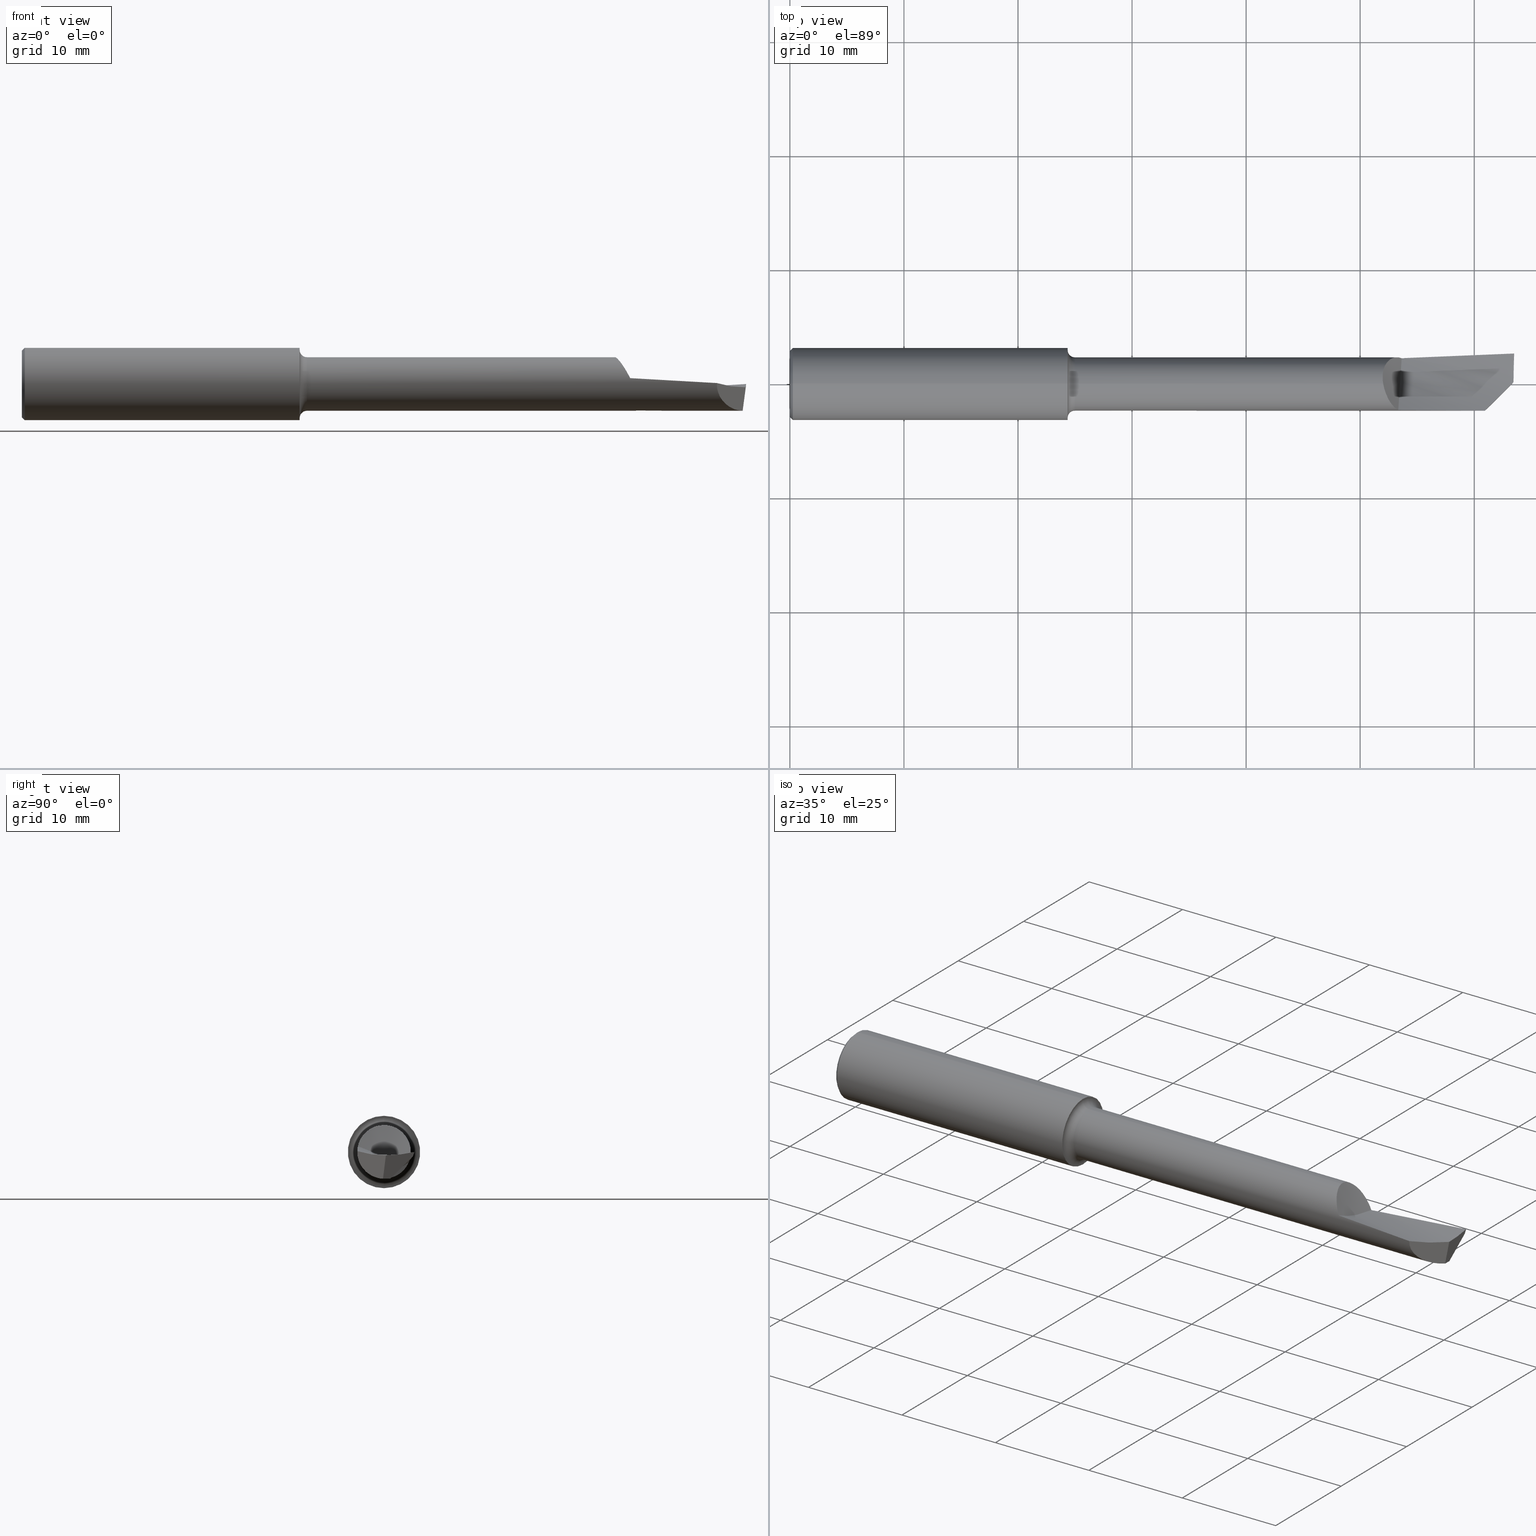
[diagram: canonical four-view strip — front | top / right | iso, engineering-drawing reading convention]
A machine part, canonical four-view strip (front | top / right | iso — engineering-drawing reading convention). The complete STEP part file that produces these views, byte-faithful:
ISO-10303-21;
HEADER;
FILE_DESCRIPTION (( 'STEP AP203' ),
    '1' );
FILE_NAME ('216372-HB2101500.STEP',
    '2024-08-05T19:23:28',
    ( '' ),
    ( '' ),
    'SwSTEP 2.0',
    'SolidWorks 2024',
    '' );
FILE_SCHEMA (( 'CONFIG_CONTROL_DESIGN' ));
ENDSEC;

DATA;
#1 = CARTESIAN_POINT ( 'NONE',  ( 2.047827916880122334, 0.0005448074884509098359, 0.09249879614009953732 ) ) ;
#2 = ADVANCED_FACE ( 'NONE', ( #639 ), #43, .T. ) ;
#3 = CARTESIAN_POINT ( 'NONE',  ( 0.9588951354882120359, 1.528971528735470422E-17, -0.1248500000000000026 ) ) ;
#4 = EDGE_LOOP ( 'NONE', ( #662, #448 ) ) ;
#5 = CARTESIAN_POINT ( 'NONE',  ( 0.000000000000000000, 0.000000000000000000, 0.000000000000000000 ) ) ;
#6 = CC_DESIGN_PERSON_AND_ORGANIZATION_ASSIGNMENT ( #436, #262, ( #34 ) ) ;
#7 = CARTESIAN_POINT ( 'NONE',  ( 2.073468108956049605, 0.08550618690932580701, 0.03552333859736302862 ) ) ;
#8 = AXIS2_PLACEMENT_3D ( 'NONE', #635, #335, #471 ) ;
#9 = CARTESIAN_POINT ( 'NONE',  ( 2.499285671182128521, 0.1032874411698090911, -0.005678036994176365385 ) ) ;
#10 = VECTOR ( 'NONE', #540, 39.37007874015748854 ) ;
#11 =( CONVERSION_BASED_UNIT ( 'INCH', #317 ) LENGTH_UNIT ( ) NAMED_UNIT ( #727 ) );
#12 = CARTESIAN_POINT ( 'NONE',  ( 2.120000000000000107, 0.08063057151273658740, -0.03818176342124572631 ) ) ;
#13 = EDGE_LOOP ( 'NONE', ( #356, #539, #524, #31, #689, #430, #186, #542, #419 ) ) ;
#14 = CARTESIAN_POINT ( 'NONE',  ( 2.066208213237176849, -0.05356572789672628399, 0.07541362391561999556 ) ) ;
#15 = ORIENTED_EDGE ( 'NONE', *, *, #416, .F. ) ;
#16 = CARTESIAN_POINT ( 'NONE',  ( 2.076286271816419227, 0.08730198741611246149, 0.03105794626334639624 ) ) ;
#17 = EDGE_CURVE ( 'NONE', #62, #372, #712, .T. ) ;
#18 = CARTESIAN_POINT ( 'NONE',  ( 2.498254200941743886, 0.1004425182897683844, -0.01387617236857617564 ) ) ;
#19 = EDGE_CURVE ( 'NONE', #344, #624, #392, .T. ) ;
#20 = EDGE_LOOP ( 'NONE', ( #505, #112, #530, #376 ) ) ;
#21 = CARTESIAN_POINT ( 'NONE',  ( 2.064632393218944539, -0.05062565620870608518, 0.07748382293347118310 ) ) ;
#22 = CC_DESIGN_APPROVAL ( #397, ( #388 ) ) ;
#23 = VECTOR ( 'NONE', #345, 39.37007874015748143 ) ;
#24 = PERSON_AND_ORGANIZATION ( #190, #272 ) ;
#25 = CARTESIAN_POINT ( 'NONE',  ( 2.054472730122976376, 0.06293394240340167978, 0.06779179277510309631 ) ) ;
#26 = CARTESIAN_POINT ( 'NONE',  ( 2.120000000000000107, 0.1031491054400725804, 0.02301130782419849238 ) ) ;
#27 = VERTEX_POINT ( 'NONE', #518 ) ;
#28 = EDGE_CURVE ( 'NONE', #144, #590, #736, .T. ) ;
#29 = CARTESIAN_POINT ( 'NONE',  ( 2.246666795550186890, 0.09583926743677556592, -0.01805720466450634956 ) ) ;
#30 = ORIENTED_EDGE ( 'NONE', *, *, #115, .T. ) ;
#31 = ORIENTED_EDGE ( 'NONE', *, *, #503, .F. ) ;
#32 = DIRECTION ( 'NONE',  ( -0.000000000000000000, 0.000000000000000000, 1.000000000000000000 ) ) ;
#33 = CARTESIAN_POINT ( 'NONE',  ( 2.500000000000000000, 0.1000850858006551020, -0.01500000000000000291 ) ) ;
#34 = PRODUCT ( '216372-HB2101500', '216372-HB2101500', '', ( #132 ) ) ;
#35 = ORIENTED_EDGE ( 'NONE', *, *, #182, .T. ) ;
#36 = FACE_OUTER_BOUND ( 'NONE', #559, .T. ) ;
#37 = DIRECTION ( 'NONE',  ( 0.000000000000000000, 0.000000000000000000, 1.000000000000000000 ) ) ;
#38 = CARTESIAN_POINT ( 'NONE',  ( 2.246666839410972116, 0.08800600117758944352, -0.03192822413215862937 ) ) ;
#39 = ORIENTED_EDGE ( 'NONE', *, *, #503, .T. ) ;
#40 = DIRECTION ( 'NONE',  ( 1.000000000000000000, 0.000000000000000000, 0.000000000000000000 ) ) ;
#41 = CARTESIAN_POINT ( 'NONE',  ( 2.373333011663514291, 0.1057582611602083666, 0.04041104946920352770 ) ) ;
#42 = CARTESIAN_POINT ( 'NONE',  ( 2.500000000000000000, 0.1748499999999998666, 0.02036606132864511934 ) ) ;
#43 = B_SPLINE_SURFACE_WITH_KNOTS ( 'NONE', 1, 3, ( 
 ( #507, #41, #283, #203 ),
 ( #220, #751, #634, #401 ) ),
 .UNSPECIFIED., .F., .F., .F.,
 ( 2, 2 ),
 ( 4, 4 ),
 ( 0.000000000000000000, 1.000000000000000000 ),
 ( 0.000000000000000000, 1.000000000000000000 ),
 .UNSPECIFIED. ) ;
#44 = CARTESIAN_POINT ( 'NONE',  ( 0.000000000000000000, 0.000000000000000000, 0.000000000000000000 ) ) ;
#45 = DIRECTION ( 'NONE',  ( -1.000000000000000000, -0.000000000000000000, -0.000000000000000000 ) ) ;
#46 = AXIS2_PLACEMENT_3D ( 'NONE', #412, #752, #37 ) ;
#47 = CIRCLE ( 'NONE', #431, 0.1248500000000000026 ) ;
#48 = DIRECTION ( 'NONE',  ( 0.000000000000000000, -0.8717274065385063331, -0.4899911516442410631 ) ) ;
#49 = CARTESIAN_POINT ( 'NONE',  ( 2.165123023610928676, -0.009485967679078336628, -0.09212995648928998249 ) ) ;
#50 = CC_DESIGN_DATE_AND_TIME_ASSIGNMENT ( #758, #511, ( #388 ) ) ;
#51 = ORIENTED_EDGE ( 'NONE', *, *, #403, .T. ) ;
#52 = CARTESIAN_POINT ( 'NONE',  ( 2.500000000000000000, 0.1052499999999999686, 0.000000000000000000 ) ) ;
#53 = PLANE ( 'NONE',  #479 ) ;
#54 = VERTEX_POINT ( 'NONE', #687 ) ;
#55 = CYLINDRICAL_SURFACE ( 'NONE', #491, 0.09249999999999999889 ) ;
#56 = CARTESIAN_POINT ( 'NONE',  ( 2.099469566383024066, -0.09876474483481932631, 0.02439576420680025434 ) ) ;
#57 = APPROVAL_PERSON_ORGANIZATION ( #312, #349, #197 ) ;
#58 = EDGE_CURVE ( 'NONE', #183, #342, #763, .T. ) ;
#59 = VECTOR ( 'NONE', #648, 39.37007874015748143 ) ;
#60 = CARTESIAN_POINT ( 'NONE',  ( 2.246698480951583754, 0.09595842451396570383, -0.01731511377960634826 ) ) ;
#61 = DIRECTION ( 'NONE',  ( 0.000000000000000000, 0.000000000000000000, -1.000000000000000000 ) ) ;
#62 = VERTEX_POINT ( 'NONE', #142 ) ;
#63 =( BOUNDED_CURVE ( )  B_SPLINE_CURVE ( 3, ( #698, #520, #208, #743 ),
 .UNSPECIFIED., .F., .F. ) 
 B_SPLINE_CURVE_WITH_KNOTS ( ( 4, 4 ),
 ( 0.005175778614820833803, 0.005191721417056123847 ),
 .UNSPECIFIED. ) 
 CURVE ( )  GEOMETRIC_REPRESENTATION_ITEM ( )  RATIONAL_B_SPLINE_CURVE ( ( 0.9740275819911479172, 0.9740656182505580407, 0.9741037836849223419, 0.9741420782942408207 ) ) 
 REPRESENTATION_ITEM ( '' )  );
#64 = FACE_OUTER_BOUND ( 'NONE', #4, .T. ) ;
#65 = ORIENTED_EDGE ( 'NONE', *, *, #393, .F. ) ;
#66 = DIRECTION ( 'NONE',  ( -1.000000000000000000, -0.000000000000000000, -0.000000000000000000 ) ) ;
#67 = ORIENTED_EDGE ( 'NONE', *, *, #282, .F. ) ;
#68 = CARTESIAN_POINT ( 'NONE',  ( 2.499047594033947384, 0.1026322863735309177, -0.007570382820376967380 ) ) ;
#69 = DATE_AND_TIME ( #325, #543 ) ;
#70 = CARTESIAN_POINT ( 'NONE',  ( 2.500000000000000000, 0.1000850858006551020, -0.01499999999999999944 ) ) ;
#71 = AXIS2_PLACEMENT_3D ( 'NONE', #5, #671, #484 ) ;
#72 = VERTEX_POINT ( 'NONE', #631 ) ;
#73 = CARTESIAN_POINT ( 'NONE',  ( 2.115831856367702546, 0.08921906441239113583, -0.02441856689959865864 ) ) ;
#74 = B_SPLINE_CURVE_WITH_KNOTS ( 'NONE', 3,
 ( #215, #446, #733, #621 ),
 .UNSPECIFIED., .F., .F.,
 ( 4, 4 ),
 ( 7.967431483338822441E-05, 0.003654915943233843362 ),
 .UNSPECIFIED. ) ;
#75 = ADVANCED_FACE ( 'NONE', ( #460 ), #86, .F. ) ;
#76 = CARTESIAN_POINT ( 'NONE',  ( 2.070390417637880009, 0.08316591038031106997, 0.04049630990281855025 ) ) ;
#77 = DIRECTION ( 'NONE',  ( 0.000000000000000000, 0.000000000000000000, -1.000000000000000000 ) ) ;
#78 = CARTESIAN_POINT ( 'NONE',  ( 2.092374781392565275, -0.08702720584656421787, 0.03461678013650090063 ) ) ;
#79 = CARTESIAN_POINT ( 'NONE',  ( 2.487695489768970258, -0.003208829926469456556, -0.09249999999999992950 ) ) ;
#80 = CARTESIAN_POINT ( 'NONE',  ( 2.120000000000000107, -0.07944964091159011088, -0.1281615977741831502 ) ) ;
#81 = ORIENTED_EDGE ( 'NONE', *, *, #742, .F. ) ;
#82 = AXIS2_PLACEMENT_3D ( 'NONE', #185, #561, #384 ) ;
#83 = CARTESIAN_POINT ( 'NONE',  ( 2.101985182368761418, -0.06232069977107370512, 0.007196703789060768588 ) ) ;
#84 = AXIS2_PLACEMENT_3D ( 'NONE', #188, #619, #320 ) ;
#85 = CARTESIAN_POINT ( 'NONE',  ( 2.120000000000000107, 0.08965269071704771997, -0.02513271350373088089 ) ) ;
#86 = PLANE ( 'NONE',  #303 ) ;
#87 = ADVANCED_FACE ( 'NONE', ( #36 ), #207, .T. ) ;
#88 = FACE_OUTER_BOUND ( 'NONE', #120, .T. ) ;
#89 = ORIENTED_EDGE ( 'NONE', *, *, #359, .T. ) ;
#90 = ORIENTED_EDGE ( 'NONE', *, *, #241, .F. ) ;
#91 = PLANE ( 'NONE',  #8 ) ;
#92 = CARTESIAN_POINT ( 'NONE',  ( 2.396847981000522321, -0.09435605656126438978, -0.05077108463250116360 ) ) ;
#93 = ORIENTED_EDGE ( 'NONE', *, *, #96, .T. ) ;
#94 = CARTESIAN_POINT ( 'NONE',  ( 1.812666666666668203, 0.1692320603815770930, -0.05466611626099807802 ) ) ;
#95 = CARTESIAN_POINT ( 'NONE',  ( 2.046359999999999957, 0.01283752039381836144, 0.09160484741616187199 ) ) ;
#96 = EDGE_CURVE ( 'NONE', #462, #140, #348, .T. ) ;
#97 = DIRECTION ( 'NONE',  ( -1.000000000000000000, -0.000000000000000000, -0.000000000000000000 ) ) ;
#98 = B_SPLINE_CURVE_WITH_KNOTS ( 'NONE', 3,
 ( #560, #18, #669, #123, #373, #68, #9, #510, #205, #455 ),
 .UNSPECIFIED., .F., .F.,
 ( 4, 3, 3, 4 ),
 ( 5.421010862427521568E-20, 0.0001024457695730184151, 0.0002561145868976849051, 0.0004097835628805116133 ),
 .UNSPECIFIED. ) ;
#99 = DIRECTION ( 'NONE',  ( 0.000000000000000000, 0.000000000000000000, -1.000000000000000000 ) ) ;
#100 = ORIENTED_EDGE ( 'NONE', *, *, #767, .T. ) ;
#101 = CARTESIAN_POINT ( 'NONE',  ( 2.332771920986181691, 0.008204936860967758372, -0.09249999999999990175 ) ) ;
#102 = FACE_OUTER_BOUND ( 'NONE', #476, .T. ) ;
#103 = EDGE_LOOP ( 'NONE', ( #265, #261, #125 ) ) ;
#104 = ADVANCED_FACE ( 'NONE', ( #287 ), #502, .F. ) ;
#105 = DIRECTION ( 'NONE',  ( -1.000000000000000000, 0.000000000000000000, -0.000000000000000000 ) ) ;
#106 = EDGE_CURVE ( 'NONE', #395, #590, #660, .T. ) ;
#107 = CIRCLE ( 'NONE', #242, 0.1248500000000000026 ) ;
#108 = AXIS2_PLACEMENT_3D ( 'NONE', #458, #273, #211 ) ;
#109 = CARTESIAN_POINT ( 'NONE',  ( 2.410321793698463111, 0.01514861186955584853, -0.09249999999999998501 ) ) ;
#110 = CARTESIAN_POINT ( 'NONE',  ( 2.103692732370841867, -0.03694737321389097301, -0.006241681281368437889 ) ) ;
#111 = EDGE_CURVE ( 'NONE', #321, #366, #199, .T. ) ;
#112 = ORIENTED_EDGE ( 'NONE', *, *, #127, .T. ) ;
#113 = CARTESIAN_POINT ( 'NONE',  ( 2.500000000000000000, 0.1052499999999999686, 0.000000000000000000 ) ) ;
#114 = FACE_BOUND ( 'NONE', #149, .T. ) ;
#115 = EDGE_CURVE ( 'NONE', #334, #624, #429, .T. ) ;
#116 = DIRECTION ( 'NONE',  ( -0.9925083585251990304, 0.008661489226065292868, 0.1218693434051474900 ) ) ;
#117 = FACE_OUTER_BOUND ( 'NONE', #437, .T. ) ;
#118 = PRODUCT_DEFINITION ( 'UNKNOWN', '', #406, #508 ) ;
#119 = CIRCLE ( 'NONE', #569, 0.09249999999999999889 ) ;
#120 = EDGE_LOOP ( 'NONE', ( #522, #405, #703, #773, #741 ) ) ;
#121 = DIRECTION ( 'NONE',  ( 0.000000000000000000, 0.000000000000000000, 1.000000000000000000 ) ) ;
#122 = CARTESIAN_POINT ( 'NONE',  ( 0.9838951354882120581, 0.000000000000000000, 0.000000000000000000 ) ) ;
#123 = CARTESIAN_POINT ( 'NONE',  ( 2.498571536531908333, 0.1013190704819927762, -0.01135407962001194239 ) ) ;
#124 = CARTESIAN_POINT ( 'NONE',  ( 0.000000000000000000, 0.000000000000000000, 0.000000000000000000 ) ) ;
#125 = ORIENTED_EDGE ( 'NONE', *, *, #308, .T. ) ;
#126 = CARTESIAN_POINT ( 'NONE',  ( 2.066627336287861105, -0.05433633409741091269, 0.07485885989433642418 ) ) ;
#127 = EDGE_CURVE ( 'NONE', #590, #72, #708, .T. ) ;
#128 = CARTESIAN_POINT ( 'NONE',  ( 2.111665809954994089, 0.08915496014083668097, -0.02465041748704996025 ) ) ;
#129 = ORIENTED_EDGE ( 'NONE', *, *, #591, .F. ) ;
#130 = CARTESIAN_POINT ( 'NONE',  ( 2.056689114071337254, 0.06734694849162307928, 0.06362724162322348775 ) ) ;
#131 = CARTESIAN_POINT ( 'NONE',  ( 0.000000000000000000, 1.528971528735470422E-17, -0.1248500000000000026 ) ) ;
#132 = MECHANICAL_CONTEXT ( 'NONE', #691, 'mechanical' ) ;
#133 = CARTESIAN_POINT ( 'NONE',  ( 2.050684075178326626, 0.05377232911390823766, 0.07533086458502093186 ) ) ;
#134 = CARTESIAN_POINT ( 'NONE',  ( 0.9838951354882120581, 0.000000000000000000, 0.09249999999999999889 ) ) ;
#135 = ORIENTED_EDGE ( 'NONE', *, *, #670, .F. ) ;
#136 = ADVANCED_FACE ( 'NONE', ( #236 ), #364, .F. ) ;
#137 = CARTESIAN_POINT ( 'NONE',  ( 2.373332550008329989, -0.04700880150114244982, -0.1421382153914364510 ) ) ;
#138 = CARTESIAN_POINT ( 'NONE',  ( 2.500000000000000000, 0.1052499999999999686, 0.000000000000000000 ) ) ;
#139 = ORIENTED_EDGE ( 'NONE', *, *, #182, .F. ) ;
#140 = VERTEX_POINT ( 'NONE', #606 ) ;
#141 = EDGE_CURVE ( 'NONE', #630, #266, #702, .T. ) ;
#142 = CARTESIAN_POINT ( 'NONE',  ( 0.000000000000000000, 0.000000000000000000, -0.1148499999999999660 ) ) ;
#143 = CARTESIAN_POINT ( 'NONE',  ( 0.009999999999999993269, 0.000000000000000000, 0.000000000000000000 ) ) ;
#144 = VERTEX_POINT ( 'NONE', #420 ) ;
#145 = ORIENTED_EDGE ( 'NONE', *, *, #749, .T. ) ;
#146 = ORIENTED_EDGE ( 'NONE', *, *, #58, .T. ) ;
#147 = CARTESIAN_POINT ( 'NONE',  ( 2.110129382589837288, 0.08982576072408679502, -0.02222601275359146686 ) ) ;
#148 = VERTEX_POINT ( 'NONE', #764 ) ;
#149 = EDGE_LOOP ( 'NONE', ( #263, #423 ) ) ;
#150 = EDGE_CURVE ( 'NONE', #395, #344, #119, .T. ) ;
#151 = CARTESIAN_POINT ( 'NONE',  ( 2.500000000000000444, 0.06084440686735265169, -0.02218851683438133673 ) ) ;
#152 = EDGE_CURVE ( 'NONE', #334, #630, #324, .T. ) ;
#153 = CARTESIAN_POINT ( 'NONE',  ( 2.083067939091489684, 0.09028758523319836693, 0.02034379597425600358 ) ) ;
#154 = CARTESIAN_POINT ( 'NONE',  ( 2.107791904823271611, 0.02744776930478221716, -0.01842625771583338706 ) ) ;
#155 = VECTOR ( 'NONE', #681, 39.37007874015748854 ) ;
#156 = CARTESIAN_POINT ( 'NONE',  ( 0.009999999999999993269, 1.528971528735470422E-17, -0.1248500000000000026 ) ) ;
#157 = VECTOR ( 'NONE', #163, 39.37007874015748854 ) ;
#158 = CARTESIAN_POINT ( 'NONE',  ( 2.489584006386754922, 0.03463821121258572194, -0.07980971427196098533 ) ) ;
#159 = APPROVAL_ROLE ( '' ) ;
#160 = DIRECTION ( 'NONE',  ( -0.000000000000000000, 1.000000000000000000, 1.224646799147353207E-16 ) ) ;
#161 = LINE ( 'NONE', #585, #427 ) ;
#162 = ORIENTED_EDGE ( 'NONE', *, *, #449, .T. ) ;
#163 = DIRECTION ( 'NONE',  ( 0.000000000000000000, -0.5687054199298356982, -0.8225412727288697878 ) ) ;
#164 = CARTESIAN_POINT ( 'NONE',  ( 2.120000000000000107, 0.09249999999999999889, 0.000000000000000000 ) ) ;
#165 = CARTESIAN_POINT ( 'NONE',  ( 2.120000000000000107, 0.000000000000000000, 0.000000000000000000 ) ) ;
#166 = CARTESIAN_POINT ( 'NONE',  ( 2.046359999999997292, -0.004657400960956949339, 0.09279469704556622678 ) ) ;
#167 = AXIS2_PLACEMENT_3D ( 'NONE', #124, #541, #231 ) ;
#168 = CARTESIAN_POINT ( 'NONE',  ( 2.047909686212890712, -1.554536630872900275E-06, 0.09251412615423500185 ) ) ;
#169 = DIRECTION ( 'NONE',  ( 1.000000000000000000, 0.000000000000000000, 0.000000000000000000 ) ) ;
#170 = CARTESIAN_POINT ( 'NONE',  ( 0.9588951354882120359, 0.000000000000000000, 0.000000000000000000 ) ) ;
#171 = CARTESIAN_POINT ( 'NONE',  ( 2.046359999999999957, 0.03186954430192543569, 0.08683652541406530756 ) ) ;
#172 = PRODUCT_RELATED_PRODUCT_CATEGORY ( 'detail', '', ( #34 ) ) ;
#173 = CARTESIAN_POINT ( 'NONE',  ( 2.059668613704616735, -0.04013664932119041795, 0.08354322363455583822 ) ) ;
#174 = CARTESIAN_POINT ( 'NONE',  ( 2.046359999999999513, 0.05068553317297123939, 0.07904524283450664601 ) ) ;
#175 = ORIENTED_EDGE ( 'NONE', *, *, #533, .F. ) ;
#176 = CARTESIAN_POINT ( 'NONE',  ( 2.066937143561800028, 0.08018521494668531813, 0.04613968370157726928 ) ) ;
#177 = CONICAL_SURFACE ( 'NONE', #291, 0.1248500000000000026, 0.7853981633974501664 ) ;
#178 = ORIENTED_EDGE ( 'NONE', *, *, #19, .F. ) ;
#179 = CARTESIAN_POINT ( 'NONE',  ( 2.384597864376268195, -0.1066061731855178218, -0.09999999999999999167 ) ) ;
#180 = FACE_OUTER_BOUND ( 'NONE', #246, .T. ) ;
#181 = CARTESIAN_POINT ( 'NONE',  ( 2.487701070223761857, -0.003502967338024736733, -0.09243364766051763437 ) ) ;
#182 = EDGE_CURVE ( 'NONE', #462, #587, #360, .T. ) ;
#183 = VERTEX_POINT ( 'NONE', #771 ) ;
#184 = EDGE_CURVE ( 'NONE', #516, #363, #248, .T. ) ;
#185 = CARTESIAN_POINT ( 'NONE',  ( 0.000000000000000000, 0.000000000000000000, 0.000000000000000000 ) ) ;
#186 = ORIENTED_EDGE ( 'NONE', *, *, #332, .T. ) ;
#187 = CARTESIAN_POINT ( 'NONE',  ( 2.052825325469445961, 0.05937367452498090031, 0.07096069019223755214 ) ) ;
#188 = CARTESIAN_POINT ( 'NONE',  ( 0.9588951354882120359, 0.000000000000000000, 0.000000000000000000 ) ) ;
#189 = APPROVAL_DATE_TIME ( #626, #382 ) ;
#190 = PERSON ( 'UNSPECIFIED', 'UNSPECIFIED', 'UNSPECIFIED', ('UNSPECIFIED'), ('UNSPECIFIED'), ('UNSPECIFIED') ) ;
#191 = LOCAL_TIME ( 12, 23, 28.00000000000000000, #277 ) ;
#192 = CARTESIAN_POINT ( 'NONE',  ( 2.099985204774059699, -0.09024474448373197288, 0.02030113526544596175 ) ) ;
#193 = AXIS2_PLACEMENT_3D ( 'NONE', #528, #97, #469 ) ;
#194 = APPROVAL_DATE_TIME ( #620, #349 ) ;
#195 = EDGE_CURVE ( 'NONE', #516, #54, #599, .T. ) ;
#196 = B_SPLINE_SURFACE_WITH_KNOTS ( 'NONE', 1, 3, ( 
 ( #333, #200, #450, #575 ),
 ( #33, #454, #38, #684 ) ),
 .UNSPECIFIED., .F., .F., .F.,
 ( 2, 2 ),
 ( 4, 4 ),
 ( 0.000000000000000000, 1.000000000000000000 ),
 ( 0.000000000000000000, 1.000000000000000000 ),
 .UNSPECIFIED. ) ;
#197 = APPROVAL_ROLE ( '' ) ;
#198 = ORIENTED_EDGE ( 'NONE', *, *, #403, .F. ) ;
#199 = B_SPLINE_CURVE_WITH_KNOTS ( 'NONE', 3,
 ( #168, #595, #1, #646, #299, #762, #477, #233, #544 ),
 .UNSPECIFIED., .F., .F.,
 ( 4, 2, 1, 1, 1, 4 ),
 ( 0.9130828784941764642, 0.9185151985882901160, 0.9239475186824037678, 0.9348121588706318486, 0.9565414392470881211, 1.000000000000000000 ),
 .UNSPECIFIED. ) ;
#200 = CARTESIAN_POINT ( 'NONE',  ( 2.373332892029680341, 0.1012029364206453591, -0.009588959587286482664 ) ) ;
#201 = EDGE_LOOP ( 'NONE', ( #638, #492, #89, #81 ) ) ;
#202 = LINE ( 'NONE', #79, #155 ) ;
#203 = CARTESIAN_POINT ( 'NONE',  ( 2.120000000000000107, 0.1031491054400725804, 0.02301130782419849238 ) ) ;
#204 = CARTESIAN_POINT ( 'NONE',  ( 2.398761991375082836, -0.09244204618670309737, 0.003273850457099852784 ) ) ;
#205 = CARTESIAN_POINT ( 'NONE',  ( 2.499761858239264445, 0.1045967832171058598, -0.001893009771539285770 ) ) ;
#206 = AXIS2_PLACEMENT_3D ( 'NONE', #164, #105, #32 ) ;
#207 = CYLINDRICAL_SURFACE ( 'NONE', #108, 0.1248500000000000026 ) ;
#208 = CARTESIAN_POINT ( 'NONE',  ( 2.120000000000000551, 0.08970010041975085002, -0.02420745754555480439 ) ) ;
#209 = EDGE_CURVE ( 'NONE', #372, #62, #390, .T. ) ;
#210 = APPROVAL_DATE_TIME ( #633, #397 ) ;
#211 = DIRECTION ( 'NONE',  ( 0.000000000000000000, 0.000000000000000000, 1.000000000000000000 ) ) ;
#212 = CARTESIAN_POINT ( 'NONE',  ( 0.9588951354882120359, 0.000000000000000000, 0.1248500000000000026 ) ) ;
#213 = DIRECTION ( 'NONE',  ( -1.000000000000000000, -0.000000000000000000, -0.000000000000000000 ) ) ;
#214 = ORIENTED_EDGE ( 'NONE', *, *, #610, .F. ) ;
#215 = CARTESIAN_POINT ( 'NONE',  ( 2.497767342160548854, 0.006563304598762005095, -0.01116899279488216441 ) ) ;
#216 = CARTESIAN_POINT ( 'NONE',  ( 2.120000000000000107, 0.08063057151273658740, -0.03818176342124572631 ) ) ;
#217 = CARTESIAN_POINT ( 'NONE',  ( 2.270888888888889845, 0.05765417977062659016, -0.03093662185290534800 ) ) ;
#218 = CARTESIAN_POINT ( 'NONE',  ( 2.085945122272987007, 0.09115187329204574307, 0.01580990246085937218 ) ) ;
#219 = APPROVAL_STATUS ( 'not_yet_approved' ) ;
#220 = CARTESIAN_POINT ( 'NONE',  ( 2.500000000000000000, 0.1052499999999999686, 0.000000000000000000 ) ) ;
#221 = CARTESIAN_POINT ( 'NONE',  ( 2.270888888888888957, -0.1719218024467703554, 0.04550569603366619309 ) ) ;
#222 = DIRECTION ( 'NONE',  ( 0.000000000000000000, 0.000000000000000000, 1.000000000000000000 ) ) ;
#223 = CARTESIAN_POINT ( 'NONE',  ( 2.041777777777778358, -0.06463100845323596633, -0.004147875681276347488 ) ) ;
#224 = EDGE_CURVE ( 'NONE', #316, #54, #411, .T. ) ;
#225 = ORIENTED_EDGE ( 'NONE', *, *, #152, .F. ) ;
#226 =( BOUNDED_CURVE ( )  B_SPLINE_CURVE ( 3, ( #204, #92, #276, #285 ),
 .UNSPECIFIED., .F., .F. ) 
 B_SPLINE_CURVE_WITH_KNOTS ( ( 4, 4 ),
 ( 6.247784935851605326, 7.816102659225365734 ),
 .UNSPECIFIED. ) 
 CURVE ( )  GEOMETRIC_REPRESENTATION_ITEM ( )  RATIONAL_B_SPLINE_CURVE ( ( 1.000000000000000000, 0.8053217043961202748, 0.8053217043961202748, 1.000000000000000000 ) ) 
 REPRESENTATION_ITEM ( '' )  );
#227 = DIRECTION ( 'NONE',  ( -1.000000000000000000, -0.000000000000000000, -0.000000000000000000 ) ) ;
#228 = CARTESIAN_POINT ( 'NONE',  ( 0.009999999999999993269, 0.000000000000000000, 0.000000000000000000 ) ) ;
#229 = EDGE_LOOP ( 'NONE', ( #90, #65, #275, #306 ) ) ;
#230 = DIRECTION ( 'NONE',  ( 0.000000000000000000, -1.224646799147352468E-16, 1.000000000000000000 ) ) ;
#231 = DIRECTION ( 'NONE',  ( 0.000000000000000000, 0.000000000000000000, 1.000000000000000000 ) ) ;
#232 = APPROVAL_PERSON_ORGANIZATION ( #24, #382, #674 ) ;
#233 = CARTESIAN_POINT ( 'NONE',  ( 2.046522920783742983, 0.01074722021861904304, 0.09189779192344127434 ) ) ;
#234 = CARTESIAN_POINT ( 'NONE',  ( 2.108259403541731025, 0.03322201083773395486, -0.02366986548610450214 ) ) ;
#235 = ADVANCED_FACE ( 'NONE', ( #768 ), #55, .T. ) ;
#236 = FACE_OUTER_BOUND ( 'NONE', #410, .T. ) ;
#237 = PLANE ( 'NONE',  #301 ) ;
#238 = EDGE_LOOP ( 'NONE', ( #225, #30, #570, #747 ) ) ;
#239 = CARTESIAN_POINT ( 'NONE',  ( 2.063224009766619460, -0.04778499748353275817, 0.07925519998079103012 ) ) ;
#240 = CARTESIAN_POINT ( 'NONE',  ( 0.9588951354882120359, 0.1748499999999998111, 0.000000000000000000 ) ) ;
#241 = EDGE_CURVE ( 'NONE', #652, #572, #552, .T. ) ;
#242 = AXIS2_PLACEMENT_3D ( 'NONE', #690, #40, #628 ) ;
#243 = ADVANCED_FACE ( 'NONE', ( #374 ), #177, .T. ) ;
#244 = CARTESIAN_POINT ( 'NONE',  ( 2.081277077143194543, 0.08959285356399214473, 0.02317037652879311987 ) ) ;
#245 = AXIS2_PLACEMENT_3D ( 'NONE', #292, #116, #413 ) ;
#246 = EDGE_LOOP ( 'NONE', ( #328, #584 ) ) ;
#247 = ORIENTED_EDGE ( 'NONE', *, *, #224, .F. ) ;
#248 = B_SPLINE_CURVE_WITH_KNOTS ( 'NONE', 3,
 ( #113, #716, #60, #304 ),
 .UNSPECIFIED., .F., .F.,
 ( 4, 4 ),
 ( 2.686746494871500227E-21, 0.009679675726453004087 ),
 .UNSPECIFIED. ) ;
#249 = CARTESIAN_POINT ( 'NONE',  ( 2.046835084042316399, 0.03761252682148737841, 0.08472884904255002791 ) ) ;
#250 = CARTESIAN_POINT ( 'NONE',  ( 2.052056960218470838, -0.01946374552352209131, 0.09108352192149239690 ) ) ;
#251 = APPROVAL_STATUS ( 'not_yet_approved' ) ;
#252 = EDGE_CURVE ( 'NONE', #342, #321, #597, .T. ) ;
#253 = APPLICATION_PROTOCOL_DEFINITION ( 'international standard', 'config_control_design', 1994, #691 ) ;
#254 = VERTEX_POINT ( 'NONE', #496 ) ;
#255 = LOCAL_TIME ( 12, 23, 28.00000000000000000, #457 ) ;
#256 = CARTESIAN_POINT ( 'NONE',  ( 2.049452892340594357, -0.009316029406795841780, 0.09249996228234917683 ) ) ;
#257 = AXIS2_PLACEMENT_3D ( 'NONE', #417, #160, #230 ) ;
#258 = CALENDAR_DATE ( 2024, 5, 8 ) ;
#259 = CARTESIAN_POINT ( 'NONE',  ( 2.063118217034376922, 0.07621158154040955091, 0.05250172275426923801 ) ) ;
#260 = ORIENTED_EDGE ( 'NONE', *, *, #28, .F. ) ;
#261 = ORIENTED_EDGE ( 'NONE', *, *, #224, .T. ) ;
#262 = PERSON_AND_ORGANIZATION_ROLE ( 'design_owner' ) ;
#263 = ORIENTED_EDGE ( 'NONE', *, *, #282, .T. ) ;
#264 = CARTESIAN_POINT ( 'NONE',  ( 2.107649412634559294, 0.09082427280002687564, -0.01835262024604034786 ) ) ;
#265 = ORIENTED_EDGE ( 'NONE', *, *, #416, .T. ) ;
#266 = VERTEX_POINT ( 'NONE', #134 ) ;
#267 = CARTESIAN_POINT ( 'NONE',  ( 2.372063245490356298, 0.09460459572741664047, -0.02419664582615828688 ) ) ;
#268 = B_SPLINE_CURVE_WITH_KNOTS ( 'NONE', 3,
 ( #280, #158, #757, #645, #399, #637, #571 ),
 .UNSPECIFIED., .F., .F.,
 ( 4, 3, 4 ),
 ( 2.384506018887239966E-05, 0.001416835870140611226, 0.002833748123453157068 ),
 .UNSPECIFIED. ) ;
#269 = CARTESIAN_POINT ( 'NONE',  ( 2.487911875949742946, 0.02158657043490888258, -0.09249999999999992950 ) ) ;
#270 = ADVANCED_FACE ( 'NONE', ( #549 ), #731, .F. ) ;
#271 = CARTESIAN_POINT ( 'NONE',  ( 0.000000000000000000, 1.467739188778102589E-17, 0.1148499999999999660 ) ) ;
#272 = ORGANIZATION ( 'UNSPECIFIED', 'UNSPECIFIED', '' ) ;
#273 = DIRECTION ( 'NONE',  ( -1.000000000000000000, -0.000000000000000000, -0.000000000000000000 ) ) ;
#274 = CARTESIAN_POINT ( 'NONE',  ( 2.487723492803501912, 0.000000000000000000, -0.09249999999999992950 ) ) ;
#275 = ORIENTED_EDGE ( 'NONE', *, *, #534, .T. ) ;
#276 = CARTESIAN_POINT ( 'NONE',  ( 2.433661045213732610, -0.05754299234805447527, -0.09038568734144178385 ) ) ;
#277 = COORDINATED_UNIVERSAL_TIME_OFFSET ( 8, 0, .BEHIND. ) ;
#278 = VERTEX_POINT ( 'NONE', #433 ) ;
#279 = FACE_OUTER_BOUND ( 'NONE', #20, .T. ) ;
#280 = CARTESIAN_POINT ( 'NONE',  ( 2.487911875949742946, 0.02158657043490888258, -0.09249999999999992950 ) ) ;
#281 = SECURITY_CLASSIFICATION_LEVEL ( 'unclassified' ) ;
#282 = EDGE_CURVE ( 'NONE', #630, #334, #761, .T. ) ;
#283 = CARTESIAN_POINT ( 'NONE',  ( 2.246666675535476720, 0.1049494577821058344, 0.03131641692888404577 ) ) ;
#284 = PLANE ( 'NONE',  #206 ) ;
#285 = CARTESIAN_POINT ( 'NONE',  ( 2.487701070223761857, -0.003502967338024736733, -0.09243364766051763437 ) ) ;
#286 = LOCAL_TIME ( 12, 23, 28.00000000000000000, #678 ) ;
#287 = FACE_OUTER_BOUND ( 'NONE', #370, .T. ) ;
#288 = CARTESIAN_POINT ( 'NONE',  ( 2.041777777777778802, -0.1620295639055862602, 0.06880203030876089199 ) ) ;
#289 = AXIS2_PLACEMENT_3D ( 'NONE', #531, #353, #536 ) ;
#290 = CC_DESIGN_PERSON_AND_ORGANIZATION_ASSIGNMENT ( #347, #523, ( #388 ) ) ;
#291 = AXIS2_PLACEMENT_3D ( 'NONE', #563, #426, #77 ) ;
#292 = CARTESIAN_POINT ( 'NONE',  ( 2.500000000000000000, 0.1052499999999999686, 0.000000000000000000 ) ) ;
#293 = CARTESIAN_POINT ( 'NONE',  ( 2.046359999999999069, 0.02548420369320165274, 0.08827803738801967559 ) ) ;
#294 = ORIENTED_EDGE ( 'NONE', *, *, #367, .T. ) ;
#295 = DIRECTION ( 'NONE',  ( 0.000000000000000000, 0.000000000000000000, 1.000000000000000000 ) ) ;
#296 = CARTESIAN_POINT ( 'NONE',  ( 0.9838951354882120581, 1.132798289211301828E-17, -0.09249999999999999889 ) ) ;
#297 = EDGE_CURVE ( 'NONE', #144, #516, #98, .T. ) ;
#298 = ORIENTED_EDGE ( 'NONE', *, *, #127, .F. ) ;
#299 = CARTESIAN_POINT ( 'NONE',  ( 2.047613336586801225, 0.001904979390057215047, 0.09248317671571612553 ) ) ;
#300 = FACE_OUTER_BOUND ( 'NONE', #759, .T. ) ;
#301 = AXIS2_PLACEMENT_3D ( 'NONE', #240, #478, #418 ) ;
#302 = B_SPLINE_CURVE_WITH_KNOTS ( 'NONE', 3,
 ( #772, #49, #607, #719 ),
 .UNSPECIFIED., .F., .F.,
 ( 4, 4 ),
 ( 0.000000000000000000, 0.003456506819781745340 ),
 .UNSPECIFIED. ) ;
#303 = AXIS2_PLACEMENT_3D ( 'NONE', #330, #512, #746 ) ;
#304 = CARTESIAN_POINT ( 'NONE',  ( 2.120000000000000107, 0.08990917335082526662, -0.02421779605015241671 ) ) ;
#305 = DIRECTION ( 'NONE',  ( 0.000000000000000000, 0.000000000000000000, 1.000000000000000000 ) ) ;
#306 = ORIENTED_EDGE ( 'NONE', *, *, #456, .F. ) ;
#307 = CARTESIAN_POINT ( 'NONE',  ( 2.047909686212890712, -1.554536630872900275E-06, 0.09251412615423500185 ) ) ;
#308 = EDGE_CURVE ( 'NONE', #54, #278, #74, .T. ) ;
#309 = DIRECTION ( 'NONE',  ( 0.000000000000000000, 0.000000000000000000, -1.000000000000000000 ) ) ;
#310 = EDGE_LOOP ( 'NONE', ( #576, #500, #337, #442 ) ) ;
#311 = FACE_OUTER_BOUND ( 'NONE', #573, .T. ) ;
#312 = PERSON_AND_ORGANIZATION ( #190, #272 ) ;
#313 = VECTOR ( 'NONE', #740, 39.37007874015748143 ) ;
#314 = ADVANCED_FACE ( 'NONE', ( #582 ), #532, .F. ) ;
#315 = CARTESIAN_POINT ( 'NONE',  ( 2.047909686212890712, -1.554536630872900275E-06, 0.09251412615423500185 ) ) ;
#316 = VERTEX_POINT ( 'NONE', #181 ) ;
#317 = LENGTH_MEASURE_WITH_UNIT ( LENGTH_MEASURE( 0.02539999999999999897 ), #497 );
#318 = ORIENTED_EDGE ( 'NONE', *, *, #367, .F. ) ;
#319 = CARTESIAN_POINT ( 'NONE',  ( 2.373332864543214349, 0.09467142348069552960, -0.02411840428777741949 ) ) ;
#320 = DIRECTION ( 'NONE',  ( 0.000000000000000000, 0.000000000000000000, 1.000000000000000000 ) ) ;
#321 = VERTEX_POINT ( 'NONE', #315 ) ;
#322 = DIRECTION ( 'NONE',  ( 0.000000000000000000, 0.000000000000000000, 1.000000000000000000 ) ) ;
#323 = CARTESIAN_POINT ( 'NONE',  ( 2.052082497096775704, 0.05752794145831838235, 0.07245187427481500353 ) ) ;
#324 = CIRCLE ( 'NONE', #724, 0.1175000000000000211 ) ;
#325 = CALENDAR_DATE ( 2024, 5, 8 ) ;
#326 = CARTESIAN_POINT ( 'NONE',  ( 2.099985204774059699, -0.09024474448373197288, 0.02030113526544596175 ) ) ;
#327 = CARTESIAN_POINT ( 'NONE',  ( 2.090581533027239036, 0.09210676330602081407, 0.008522862028076474278 ) ) ;
#328 = ORIENTED_EDGE ( 'NONE', *, *, #17, .T. ) ;
#329 = CALENDAR_DATE ( 2024, 5, 8 ) ;
#330 = CARTESIAN_POINT ( 'NONE',  ( 2.120000000000000107, 0.000000000000000000, -0.09249999999999992950 ) ) ;
#331 = ADVANCED_FACE ( 'NONE', ( #311 ), #445, .T. ) ;
#332 = EDGE_CURVE ( 'NONE', #254, #183, #498, .T. ) ;
#333 = CARTESIAN_POINT ( 'NONE',  ( 2.500000000000000000, 0.1052499999999999686, 0.000000000000000000 ) ) ;
#334 = VERTEX_POINT ( 'NONE', #739 ) ;
#335 = DIRECTION ( 'NONE',  ( 1.000000000000000000, 0.000000000000000000, 0.000000000000000000 ) ) ;
#336 = DIRECTION ( 'NONE',  ( -1.000000000000000000, -0.000000000000000000, -0.000000000000000000 ) ) ;
#337 = ORIENTED_EDGE ( 'NONE', *, *, #742, .T. ) ;
#338 = CIRCLE ( 'NONE', #553, 0.1248500000000000026 ) ;
#339 = CARTESIAN_POINT ( 'NONE',  ( 2.498095554844090849, 0.1000035969173681955, -0.01513699696102066387 ) ) ;
#340 = CARTESIAN_POINT ( 'NONE',  ( 2.500000000000000000, 0.1052499999999999686, 0.000000000000000000 ) ) ;
#341 = CARTESIAN_POINT ( 'NONE',  ( 2.120000000000000107, 0.08928196195395607382, -0.02418638603949730542 ) ) ;
#342 = VERTEX_POINT ( 'NONE', #394 ) ;
#343 = PERSON_AND_ORGANIZATION_ROLE ( 'design_supplier' ) ;
#344 = VERTEX_POINT ( 'NONE', #589 ) ;
#345 = DIRECTION ( 'NONE',  ( -1.000000000000000000, -0.000000000000000000, -0.000000000000000000 ) ) ;
#346 = VERTEX_POINT ( 'NONE', #341 ) ;
#347 = PERSON_AND_ORGANIZATION ( #190, #272 ) ;
#348 = LINE ( 'NONE', #546, #59 ) ;
#349 = APPROVAL ( #439, 'UNSPECIFIED' ) ;
#350 = CARTESIAN_POINT ( 'NONE',  ( 1.812666666666668203, -0.1521373253644021650, 0.09209836458385559088 ) ) ;
#351 = MANIFOLD_SOLID_BREP ( 'Front Angle', #615 ) ;
#352 = CC_DESIGN_APPROVAL ( #349, ( #406 ) ) ;
#353 = DIRECTION ( 'NONE',  ( -1.000000000000000000, -0.000000000000000000, -0.000000000000000000 ) ) ;
#354 = CARTESIAN_POINT ( 'NONE',  ( 1.812666666666668869, 0.04660292681476783244, -0.04592653077460544936 ) ) ;
#355 = AXIS2_PLACEMENT_3D ( 'NONE', #44, #486, #222 ) ;
#356 = ORIENTED_EDGE ( 'NONE', *, *, #150, .T. ) ;
#357 = CARTESIAN_POINT ( 'NONE',  ( 0.9838951354882120581, 0.000000000000000000, 0.1175000000000000211 ) ) ;
#358 = DIRECTION ( 'NONE',  ( 0.7071067811865462405, 8.659560562354948882E-17, 0.7071067811865487940 ) ) ;
#359 = EDGE_CURVE ( 'NONE', #27, #572, #47, .T. ) ;
#360 = B_SPLINE_CURVE_WITH_KNOTS ( 'NONE', 3,
 ( #654, #101, #109, #657 ),
 .UNSPECIFIED., .F., .F.,
 ( 4, 4 ),
 ( 0.000000000000000000, 0.005932586083088494527 ),
 .UNSPECIFIED. ) ;
#361 = CARTESIAN_POINT ( 'NONE',  ( 2.498105852030231944, 0.03982996995073791180, -0.01077648217461519772 ) ) ;
#362 = CARTESIAN_POINT ( 'NONE',  ( 2.046359999999999069, 0.01913645612721456488, 0.08986829457070735772 ) ) ;
#363 = VERTEX_POINT ( 'NONE', #509 ) ;
#364 = PLANE ( 'NONE',  #245 ) ;
#365 = CARTESIAN_POINT ( 'NONE',  ( 0.000000000000000000, 0.000000000000000000, 0.000000000000000000 ) ) ;
#366 = VERTEX_POINT ( 'NONE', #95 ) ;
#367 = EDGE_CURVE ( 'NONE', #346, #363, #63, .T. ) ;
#368 = CARTESIAN_POINT ( 'NONE',  ( 2.066732102188527431, -0.05452740403586507634, 0.07471960758305627726 ) ) ;
#369 = DIRECTION ( 'NONE',  ( 0.000000000000000000, -0.5687054199298356982, -0.8225412727288697878 ) ) ;
#370 = EDGE_LOOP ( 'NONE', ( #721, #67, #729, #644 ) ) ;
#371 = CARTESIAN_POINT ( 'NONE',  ( 0.9838951354882120581, 0.000000000000000000, 0.000000000000000000 ) ) ;
#372 = VERTEX_POINT ( 'NONE', #271 ) ;
#373 = CARTESIAN_POINT ( 'NONE',  ( 2.498809549093434779, 0.1019761625121145959, -0.009462397472816717198 ) ) ;
#374 = FACE_OUTER_BOUND ( 'NONE', #310, .T. ) ;
#375 = LINE ( 'NONE', #26, #605 ) ;
#376 = ORIENTED_EDGE ( 'NONE', *, *, #150, .F. ) ;
#377 = APPROVAL_PERSON_ORGANIZATION ( #750, #397, #159 ) ;
#378 = B_SPLINE_CURVE_WITH_KNOTS ( 'NONE', 3,
 ( #171, #293, #362, #537 ),
 .UNSPECIFIED., .F., .F.,
 ( 4, 4 ),
 ( 0.000000000000000000, 1.000000000000000000 ),
 .UNSPECIFIED. ) ;
#379 = CARTESIAN_POINT ( 'NONE',  ( 2.068150813712690717, 0.08131382946355224239, 0.04414186749009448019 ) ) ;
#380 = CARTESIAN_POINT ( 'NONE',  ( 2.085890238348702574, -0.08094550312319337415, 0.04598559725705914092 ) ) ;
#381 = CALENDAR_DATE ( 2024, 5, 8 ) ;
#382 = APPROVAL ( #251, 'UNSPECIFIED' ) ;
#383 = CARTESIAN_POINT ( 'NONE',  ( 2.071197751350748018, -0.06224497473912510986, 0.06871714438118392554 ) ) ;
#384 = DIRECTION ( 'NONE',  ( 1.000000000000000000, 0.000000000000000000, 0.000000000000000000 ) ) ;
#385 = CARTESIAN_POINT ( 'NONE',  ( 2.246667561320148998, -0.06387639169839057218, -0.1364924236186684792 ) ) ;
#386 = PERSON_AND_ORGANIZATION ( #190, #272 ) ;
#387 = CARTESIAN_POINT ( 'NONE',  ( 2.103920395128665799, -0.03289320846274075560, -0.003308102619573082773 ) ) ;
#388 = SECURITY_CLASSIFICATION ( '', '', #281 ) ;
#389 = CARTESIAN_POINT ( 'NONE',  ( 2.373332892029680341, 0.1012029364206453591, -0.009588959587286482664 ) ) ;
#390 = CIRCLE ( 'NONE', #355, 0.1148499999999999660 ) ;
#391 = AXIS2_PLACEMENT_3D ( 'NONE', #179, #489, #622 ) ;
#392 = LINE ( 'NONE', #577, #643 ) ;
#393 = EDGE_CURVE ( 'NONE', #557, #652, #107, .T. ) ;
#394 = CARTESIAN_POINT ( 'NONE',  ( 2.099985204774059699, -0.09024474448373197288, 0.02030113526544596175 ) ) ;
#395 = VERTEX_POINT ( 'NONE', #694 ) ;
#396 = DIRECTION ( 'NONE',  ( -1.000000000000000000, -0.000000000000000000, -0.000000000000000000 ) ) ;
#397 = APPROVAL ( #219, 'UNSPECIFIED' ) ;
#398 = CARTESIAN_POINT ( 'NONE',  ( 2.255347661285690197, 2.667820306312757049E-18, -0.09249999999999990175 ) ) ;
#399 = CARTESIAN_POINT ( 'NONE',  ( 2.494655810549626818, 0.07378523218321564325, -0.04128701124501964886 ) ) ;
#400 = ORIENTED_EDGE ( 'NONE', *, *, #184, .T. ) ;
#401 = CARTESIAN_POINT ( 'NONE',  ( 2.120000000000000107, 0.08965269071704771997, -0.02513271350373088089 ) ) ;
#402 = CARTESIAN_POINT ( 'NONE',  ( 1.583555555555557381, 0.03918955435071098253, -0.05156113804157395203 ) ) ;
#403 = EDGE_CURVE ( 'NONE', #587, #144, #268, .T. ) ;
#404 = CARTESIAN_POINT ( 'NONE',  ( 2.086935998376662216, 0.09141023289801472607, 0.01424971767703395870 ) ) ;
#405 = ORIENTED_EDGE ( 'NONE', *, *, #28, .T. ) ;
#406 = PRODUCT_DEFINITION_FORMATION_WITH_SPECIFIED_SOURCE ( 'ANY', '', #34, .NOT_KNOWN. ) ;
#407 = EDGE_LOOP ( 'NONE', ( #35, #100, #696 ) ) ;
#408 = CARTESIAN_POINT ( 'NONE',  ( 0.009999999999999993269, 0.000000000000000000, 0.000000000000000000 ) ) ;
#409 = EDGE_CURVE ( 'NONE', #344, #72, #440, .T. ) ;
#410 = EDGE_LOOP ( 'NONE', ( #517, #574, #247, #672, #692, #51 ) ) ;
#411 = LINE ( 'NONE', #706, #10 ) ;
#412 = CARTESIAN_POINT ( 'NONE',  ( 2.120000000000000107, 0.000000000000000000, 0.000000000000000000 ) ) ;
#413 = DIRECTION ( 'NONE',  ( 0.1218739150664907706, 0.000000000000000000, 0.9925455903012041503 ) ) ;
#414 = CARTESIAN_POINT ( 'NONE',  ( 2.500000000000000000, -0.1748499999999999499, 0.02036606132864511934 ) ) ;
#415 = EDGE_LOOP ( 'NONE', ( #162, #627, #693 ) ) ;
#416 = EDGE_CURVE ( 'NONE', #278, #316, #226, .T. ) ;
#417 = CARTESIAN_POINT ( 'NONE',  ( 0.9838951354882120581, 1.438959988998140530E-17, -0.1175000000000000211 ) ) ;
#418 = DIRECTION ( 'NONE',  ( 0.000000000000000000, 0.000000000000000000, -1.000000000000000000 ) ) ;
#419 = ORIENTED_EDGE ( 'NONE', *, *, #548, .T. ) ;
#420 = CARTESIAN_POINT ( 'NONE',  ( 2.498095554844090849, 0.1000035969173681955, -0.01513699696102066387 ) ) ;
#421 = CARTESIAN_POINT ( 'NONE',  ( 0.9588951354882120359, 0.000000000000000000, 0.000000000000000000 ) ) ;
#422 =( BOUNDED_CURVE ( )  B_SPLINE_CURVE ( 3, ( #647, #529, #756, #274 ),
 .UNSPECIFIED., .F., .F. ) 
 B_SPLINE_CURVE_WITH_KNOTS ( ( 4, 4 ),
 ( 0.03307364821532068899, 0.07095262296443420602 ),
 .UNSPECIFIED. ) 
 CURVE ( )  GEOMETRIC_REPRESENTATION_ITEM ( )  RATIONAL_B_SPLINE_CURVE ( ( 1.000000000000000000, 0.9998804355134170985, 0.9998804355134170985, 1.000000000000000000 ) ) 
 REPRESENTATION_ITEM ( '' )  );
#423 = ORIENTED_EDGE ( 'NONE', *, *, #152, .T. ) ;
#424 = CARTESIAN_POINT ( 'NONE',  ( 2.120000000000000107, 0.08965269071704771997, -0.02513271350373088089 ) ) ;
#425 = CARTESIAN_POINT ( 'NONE',  ( 2.112521805327296498, 0.1031277890515530093, -0.02518047411719523052 ) ) ;
#426 = DIRECTION ( 'NONE',  ( 1.000000000000000000, 0.000000000000000000, 0.000000000000000000 ) ) ;
#427 = VECTOR ( 'NONE', #650, 39.37007874015748143 ) ;
#428 = CARTESIAN_POINT ( 'NONE',  ( 2.046359999999999513, 0.1059440200732878062, 0.07762243902522676653 ) ) ;
#429 = CIRCLE ( 'NONE', #257, 0.02500000000000002220 ) ;
#430 = ORIENTED_EDGE ( 'NONE', *, *, #598, .F. ) ;
#431 = AXIS2_PLACEMENT_3D ( 'NONE', #408, #466, #701 ) ;
#432 = CARTESIAN_POINT ( 'NONE',  ( 2.059019005238191813, 0.07106157771718758787, 0.05949828892136887343 ) ) ;
#433 = CARTESIAN_POINT ( 'NONE',  ( 2.398761991375082836, -0.09244204618670309737, 0.003273850457099852784 ) ) ;
#434 = CYLINDRICAL_SURFACE ( 'NONE', #167, 0.1248500000000000026 ) ;
#435 = EDGE_LOOP ( 'NONE', ( #294, #145, #488, #581 ) ) ;
#436 = PERSON_AND_ORGANIZATION ( #190, #272 ) ;
#437 = EDGE_LOOP ( 'NONE', ( #583, #618, #629, #744, #535 ) ) ;
#438 = ADVANCED_FACE ( 'NONE', ( #88 ), #196, .T. ) ;
#439 = APPROVAL_STATUS ( 'not_yet_approved' ) ;
#440 = CIRCLE ( 'NONE', #453, 0.09249999999999999889 ) ;
#441 = CARTESIAN_POINT ( 'NONE',  ( 2.500000000000000000, -0.02976491419934342714, -0.1448500000000000065 ) ) ;
#442 = ORIENTED_EDGE ( 'NONE', *, *, #456, .T. ) ;
#443 = CARTESIAN_POINT ( 'NONE',  ( 2.067919854101653687, -0.05664095340334787676, 0.07313467737845072425 ) ) ;
#444 = CARTESIAN_POINT ( 'NONE',  ( 2.120000000000000107, 0.08928196195395607382, -0.02418638603949730542 ) ) ;
#445 = B_SPLINE_SURFACE_WITH_KNOTS ( 'NONE', 1, 3, ( 
 ( #70, #319, #555, #12 ),
 ( #441, #137, #385, #80 ) ),
 .UNSPECIFIED., .F., .F., .F.,
 ( 2, 2 ),
 ( 4, 4 ),
 ( 0.000000000000000000, 1.000000000000000000 ),
 ( 0.000000000000000000, 1.000000000000000000 ),
 .UNSPECIFIED. ) ;
#446 = CARTESIAN_POINT ( 'NONE',  ( 2.464380513559167429, -0.02682352400261905565, -0.01169628508488581263 ) ) ;
#447 = PERSON_AND_ORGANIZATION ( #190, #272 ) ;
#448 = ORIENTED_EDGE ( 'NONE', *, *, #610, .T. ) ;
#449 = EDGE_CURVE ( 'NONE', #516, #148, #482, .T. ) ;
#450 = CARTESIAN_POINT ( 'NONE',  ( 2.246666795550186890, 0.09583926743677556592, -0.01805720466450634956 ) ) ;
#451 = ORIENTED_EDGE ( 'NONE', *, *, #554, .F. ) ;
#452 = ORIENTED_EDGE ( 'NONE', *, *, #591, .T. ) ;
#453 = AXIS2_PLACEMENT_3D ( 'NONE', #632, #213, #99 ) ;
#454 = CARTESIAN_POINT ( 'NONE',  ( 2.373332864543214349, 0.09467142348069552960, -0.02411840428777742296 ) ) ;
#455 = CARTESIAN_POINT ( 'NONE',  ( 2.500000000000000000, 0.1052499999999999686, 0.000000000000000000 ) ) ;
#456 = EDGE_CURVE ( 'NONE', #572, #27, #338, .T. ) ;
#457 = COORDINATED_UNIVERSAL_TIME_OFFSET ( 8, 0, .BEHIND. ) ;
#458 = CARTESIAN_POINT ( 'NONE',  ( 0.000000000000000000, 0.000000000000000000, 0.000000000000000000 ) ) ;
#459 = CARTESIAN_POINT ( 'NONE',  ( 2.089248984098266870, 0.09189570065554275580, 0.01061359712825269905 ) ) ;
#460 = FACE_OUTER_BOUND ( 'NONE', #407, .T. ) ;
#461 = CARTESIAN_POINT ( 'NONE',  ( 2.096433888643092214, 0.09287403088557119601, -0.0006477885304175681020 ) ) ;
#462 = VERTEX_POINT ( 'NONE', #398 ) ;
#463 = CARTESIAN_POINT ( 'NONE',  ( 2.111665809954994089, 0.08915496014083668097, -0.02465041748704996025 ) ) ;
#464 = CARTESIAN_POINT ( 'NONE',  ( 0.000000000000000000, 0.000000000000000000, 0.1248500000000000026 ) ) ;
#465 = ADVANCED_FACE ( 'NONE', ( #279 ), #91, .T. ) ;
#466 = DIRECTION ( 'NONE',  ( -1.000000000000000000, -0.000000000000000000, -0.000000000000000000 ) ) ;
#467 = VECTOR ( 'NONE', #358, 39.37007874015748143 ) ;
#468 = CC_DESIGN_APPROVAL ( #382, ( #118 ) ) ;
#469 = DIRECTION ( 'NONE',  ( 0.000000000000000000, 0.000000000000000000, 1.000000000000000000 ) ) ;
#470 = AXIS2_PLACEMENT_3D ( 'NONE', #357, #714, #483 ) ;
#471 = DIRECTION ( 'NONE',  ( 0.000000000000000000, -0.2699282944604969869, -0.9628804265585875211 ) ) ;
#472 = ORIENTED_EDGE ( 'NONE', *, *, #252, .T. ) ;
#473 = PRODUCT_DEFINITION_SHAPE ( 'NONE', 'NONE',  #118 ) ;
#474 = DIRECTION ( 'NONE',  ( -1.000000000000000000, -0.000000000000000000, -0.000000000000000000 ) ) ;
#475 = CARTESIAN_POINT ( 'NONE',  ( 1.812666666666668869, -0.06522738294239313617, 0.005144660453304620955 ) ) ;
#476 = EDGE_LOOP ( 'NONE', ( #613, #400, #318, #608, #146, #135, #754 ) ) ;
#477 = CARTESIAN_POINT ( 'NONE',  ( 2.046834931757196774, 0.007569663407491452820, 0.09223360116256829055 ) ) ;
#478 = DIRECTION ( 'NONE',  ( 1.000000000000000000, 0.000000000000000000, 0.000000000000000000 ) ) ;
#479 = AXIS2_PLACEMENT_3D ( 'NONE', #365, #609, #309 ) ;
#480 = CARTESIAN_POINT ( 'NONE',  ( 2.498847675109613586, 0.07274798056255332712, -0.007074594563097092413 ) ) ;
#481 = DIRECTION ( 'NONE',  ( 0.000000000000000000, 0.000000000000000000, -1.000000000000000000 ) ) ;
#482 = B_SPLINE_CURVE_WITH_KNOTS ( 'NONE', 3,
 ( #138, #389, #29, #85 ),
 .UNSPECIFIED., .F., .F.,
 ( 4, 4 ),
 ( 0.000000000000000000, 1.000000000000000000 ),
 .UNSPECIFIED. ) ;
#483 = DIRECTION ( 'NONE',  ( 0.000000000000000000, 0.000000000000000000, -1.000000000000000000 ) ) ;
#484 = DIRECTION ( 'NONE',  ( 0.000000000000000000, 0.000000000000000000, 1.000000000000000000 ) ) ;
#485 = ORIENTED_EDGE ( 'NONE', *, *, #670, .T. ) ;
#486 = DIRECTION ( 'NONE',  ( -1.000000000000000000, -0.000000000000000000, -0.000000000000000000 ) ) ;
#487 = DIRECTION ( 'NONE',  ( -1.000000000000000000, -0.000000000000000000, -0.000000000000000000 ) ) ;
#488 = ORIENTED_EDGE ( 'NONE', *, *, #668, .T. ) ;
#489 = DIRECTION ( 'NONE',  ( -0.7071067811865462405, 0.7071067811865487940, 0.000000000000000000 ) ) ;
#490 = CONICAL_SURFACE ( 'NONE', #651, 0.1248500000000000026, 0.7853981633974501664 ) ;
#491 = AXIS2_PLACEMENT_3D ( 'NONE', #723, #676, #121 ) ;
#492 = ORIENTED_EDGE ( 'NONE', *, *, #616, .T. ) ;
#493 = DIRECTION ( 'NONE',  ( -1.000000000000000000, -0.000000000000000000, -0.000000000000000000 ) ) ;
#494 =( NAMED_UNIT ( * ) PLANE_ANGLE_UNIT ( ) SI_UNIT ( $, .RADIAN. ) );
#495 = CARTESIAN_POINT ( 'NONE',  ( 2.049868107001878936, 0.05118305480786037448, 0.07711223675426005786 ) ) ;
#496 = CARTESIAN_POINT ( 'NONE',  ( 2.046359999999999957, 0.03186954430192543569, 0.08683652541406530756 ) ) ;
#497 =( LENGTH_UNIT ( ) NAMED_UNIT ( * ) SI_UNIT ( $, .METRE. ) );
#498 = B_SPLINE_CURVE_WITH_KNOTS ( 'NONE', 3,
 ( #562, #249, #679, #495, #133, #323, #187, #730, #568, #25, #675, #130, #432, #259, #504, #176, #379, #617, #76, #558, #667, #551, #7, #16, #244, #153, #218, #404, #526, #459, #515, #327, #642, #586, #461, #748, #264, #147, #580 ),
 .UNSPECIFIED., .F., .F.,
 ( 4, 2, 2, 1, 1, 2, 2, 2, 2, 1, 1, 1, 2, 2, 2, 2, 2, 1, 1, 2, 2, 2, 4 ),
 ( 0.000000000000000000, 0.1249999999999653888, 0.1874999999999475142, 0.2187499999999386324, 0.2343749999999341360, 0.2421874999999318878, 0.2499999999999296396, 0.3749999999998804290, 0.4374999999998557820, 0.4687499999998435141, 0.4843749999998374078, 0.4921874999998332445, 0.4960937499998323008, 0.4999999999998314126, 0.6249999999998410161, 0.6874999999998472333, 0.7187499999998503419, 0.7343749999998518962, 0.7421874999998526734, 0.7460937499998541167, 0.7499999999998555600, 0.8749999999999278355, 1.000000000000000000 ),
 .UNSPECIFIED. ) ;
#499 = COORDINATED_UNIVERSAL_TIME_OFFSET ( 8, 0, .BEHIND. ) ;
#500 = ORIENTED_EDGE ( 'NONE', *, *, #17, .F. ) ;
#501 = CIRCLE ( 'NONE', #567, 0.09249999999999999889 ) ;
#502 = TOROIDAL_SURFACE ( 'NONE', #289, 0.1175000000000000211, 0.02500000000000001527 ) ;
#503 = EDGE_CURVE ( 'NONE', #321, #266, #161, .T. ) ;
#504 = CARTESIAN_POINT ( 'NONE',  ( 2.064585350140756059, 0.07785742368321742213, 0.05003626694631448796 ) ) ;
#505 = ORIENTED_EDGE ( 'NONE', *, *, #106, .T. ) ;
#506 = COORDINATED_UNIVERSAL_TIME_OFFSET ( 8, 0, .BEHIND. ) ;
#507 = CARTESIAN_POINT ( 'NONE',  ( 2.500000000000000000, 0.1052499999999999686, 0.05000000000000000278 ) ) ;
#508 = DESIGN_CONTEXT ( 'detailed design', #656, 'design' ) ;
#509 = CARTESIAN_POINT ( 'NONE',  ( 2.120000000000000107, 0.08990917335082526662, -0.02421779605015241671 ) ) ;
#510 = CARTESIAN_POINT ( 'NONE',  ( 2.499523748576100601, 0.1039425966424684378, -0.003785689214319770766 ) ) ;
#511 = DATE_TIME_ROLE ( 'classification_date' ) ;
#512 = DIRECTION ( 'NONE',  ( 0.000000000000000000, -0.000000000000000000, 1.000000000000000000 ) ) ;
#513 = CARTESIAN_POINT ( 'NONE',  ( 1.583555555555557826, 0.1581039042606014744, -0.07739802588953197116 ) ) ;
#514 =( GEOMETRIC_REPRESENTATION_CONTEXT ( 3 ) GLOBAL_UNCERTAINTY_ASSIGNED_CONTEXT ( ( #566 ) ) GLOBAL_UNIT_ASSIGNED_CONTEXT ( ( #11, #494, #565 ) ) REPRESENTATION_CONTEXT ( 'NONE', 'WORKASPACE' ) );
#515 = CARTESIAN_POINT ( 'NONE',  ( 2.090178636555234171, 0.09204756222701837576, 0.009154675718668237039 ) ) ;
#516 = VERTEX_POINT ( 'NONE', #340 ) ;
#517 = ORIENTED_EDGE ( 'NONE', *, *, #297, .T. ) ;
#518 = CARTESIAN_POINT ( 'NONE',  ( 0.009999999999999993269, 0.000000000000000000, 0.1248500000000000026 ) ) ;
#519 = CARTESIAN_POINT ( 'NONE',  ( 0.9838951354882120581, 0.000000000000000000, 0.000000000000000000 ) ) ;
#520 = CARTESIAN_POINT ( 'NONE',  ( 2.120000000000000551, 0.08949102992630660058, -0.02419698754576702499 ) ) ;
#521 =( BOUNDED_CURVE ( )  B_SPLINE_CURVE ( 2, ( #128, #73, #444 ),
 .UNSPECIFIED., .F., .F. ) 
 B_SPLINE_CURVE_WITH_KNOTS ( ( 3, 3 ),
 ( 0.5767193966733731303, 0.5858306181482758612 ),
 .UNSPECIFIED. ) 
 CURVE ( )  GEOMETRIC_REPRESENTATION_ITEM ( )  RATIONAL_B_SPLINE_CURVE ( ( 0.9742721459605733214, 0.9741465623362282056, 0.9740275819911484723 ) ) 
 REPRESENTATION_ITEM ( '' )  );
#522 = ORIENTED_EDGE ( 'NONE', *, *, #297, .F. ) ;
#523 = PERSON_AND_ORGANIZATION_ROLE ( 'classification_officer' ) ;
#524 = ORIENTED_EDGE ( 'NONE', *, *, #604, .F. ) ;
#525 = CARTESIAN_POINT ( 'NONE',  ( 2.500000000000000444, -0.06084440686735272802, -0.02218851683438132980 ) ) ;
#526 = CARTESIAN_POINT ( 'NONE',  ( 2.088470035096937849, 0.09174301055325211063, 0.01183760101169105926 ) ) ;
#527 = CALENDAR_DATE ( 2024, 5, 8 ) ;
#528 = CARTESIAN_POINT ( 'NONE',  ( 0.000000000000000000, 0.000000000000000000, 0.000000000000000000 ) ) ;
#529 = CARTESIAN_POINT ( 'NONE',  ( 2.487705824692297618, -0.002335800290255904237, -0.09247787990872854968 ) ) ;
#530 = ORIENTED_EDGE ( 'NONE', *, *, #409, .F. ) ;
#531 = CARTESIAN_POINT ( 'NONE',  ( 0.9838951354882120581, 0.000000000000000000, 0.000000000000000000 ) ) ;
#532 = TOROIDAL_SURFACE ( 'NONE', #726, 0.1175000000000000211, 0.02500000000000001527 ) ;
#533 = EDGE_CURVE ( 'NONE', #624, #266, #501, .T. ) ;
#534 = EDGE_CURVE ( 'NONE', #557, #27, #578, .T. ) ;
#535 = ORIENTED_EDGE ( 'NONE', *, *, #111, .F. ) ;
#536 = DIRECTION ( 'NONE',  ( 0.000000000000000000, 0.000000000000000000, 1.000000000000000000 ) ) ;
#537 = CARTESIAN_POINT ( 'NONE',  ( 2.046359999999999957, 0.01283752039381836144, 0.09160484741616187199 ) ) ;
#538 = CC_DESIGN_PERSON_AND_ORGANIZATION_ASSIGNMENT ( #611, #738, ( #118 ) ) ;
#539 = ORIENTED_EDGE ( 'NONE', *, *, #19, .T. ) ;
#540 = DIRECTION ( 'NONE',  ( 0.1220122463319277123, 0.1220122463319272405, 0.9850005195379716305 ) ) ;
#541 = DIRECTION ( 'NONE',  ( -1.000000000000000000, -0.000000000000000000, -0.000000000000000000 ) ) ;
#542 = ORIENTED_EDGE ( 'NONE', *, *, #766, .T. ) ;
#543 = LOCAL_TIME ( 12, 23, 28.00000000000000000, #499 ) ;
#544 = CARTESIAN_POINT ( 'NONE',  ( 2.046359999999999957, 0.01283752039381836144, 0.09160484741616187199 ) ) ;
#545 = LINE ( 'NONE', #661, #677 ) ;
#546 = CARTESIAN_POINT ( 'NONE',  ( 2.120000000000000107, 0.000000000000000000, -0.09249999999999992950 ) ) ;
#547 = DIRECTION ( 'NONE',  ( 1.000000000000000000, 0.000000000000000000, 0.000000000000000000 ) ) ;
#548 = EDGE_CURVE ( 'NONE', #346, #395, #688, .T. ) ;
#549 = FACE_OUTER_BOUND ( 'NONE', #103, .T. ) ;
#550 = CYLINDRICAL_SURFACE ( 'NONE', #71, 0.09249999999999999889 ) ;
#551 = CARTESIAN_POINT ( 'NONE',  ( 2.071086826718692375, 0.08370366893413648535, 0.03936956152814576754 ) ) ;
#552 = LINE ( 'NONE', #131, #653 ) ;
#553 = AXIS2_PLACEMENT_3D ( 'NONE', #143, #336, #753 ) ;
#554 = EDGE_CURVE ( 'NONE', #316, #140, #422, .T. ) ;
#555 = CARTESIAN_POINT ( 'NONE',  ( 2.246666839410972116, 0.08800600117758944352, -0.03192822413215862937 ) ) ;
#556 = CARTESIAN_POINT ( 'NONE',  ( 2.057565407188880702, -0.03494212542111562597, 0.08581955901723035962 ) ) ;
#557 = VERTEX_POINT ( 'NONE', #212 ) ;
#558 = CARTESIAN_POINT ( 'NONE',  ( 2.070718623995844165, 0.08342116242586343489, 0.03996496425778538891 ) ) ;
#559 = EDGE_LOOP ( 'NONE', ( #214, #695, #737, #685 ) ) ;
#560 = CARTESIAN_POINT ( 'NONE',  ( 2.498095554844090849, 0.1000035969173681955, -0.01513699696102066387 ) ) ;
#561 = DIRECTION ( 'NONE',  ( 0.000000000000000000, 0.000000000000000000, 1.000000000000000000 ) ) ;
#562 = CARTESIAN_POINT ( 'NONE',  ( 2.046359999999999957, 0.03186954430192543569, 0.08683652541406530756 ) ) ;
#563 = CARTESIAN_POINT ( 'NONE',  ( 0.009999999999999993269, 0.000000000000000000, 0.000000000000000000 ) ) ;
#564 = ADVANCED_FACE ( 'NONE', ( #102 ), #682, .T. ) ;
#565 =( NAMED_UNIT ( * ) SI_UNIT ( $, .STERADIAN. ) SOLID_ANGLE_UNIT ( ) );
#566 = UNCERTAINTY_MEASURE_WITH_UNIT (LENGTH_MEASURE( 1.000000000000000082E-05 ), #11, 'distance_accuracy_value', 'NONE');
#567 = AXIS2_PLACEMENT_3D ( 'NONE', #519, #45, #704 ) ;
#568 = CARTESIAN_POINT ( 'NONE',  ( 2.054188772820882747, 0.06234848831482234927, 0.06833062475167092642 ) ) ;
#569 = AXIS2_PLACEMENT_3D ( 'NONE', #165, #474, #600 ) ;
#570 = ORIENTED_EDGE ( 'NONE', *, *, #533, .T. ) ;
#571 = CARTESIAN_POINT ( 'NONE',  ( 2.498095554844090849, 0.1000035969173681955, -0.01513699696102066387 ) ) ;
#572 = VERTEX_POINT ( 'NONE', #156 ) ;
#573 = EDGE_LOOP ( 'NONE', ( #198, #139, #129, #298, #260 ) ) ;
#574 = ORIENTED_EDGE ( 'NONE', *, *, #195, .T. ) ;
#575 = CARTESIAN_POINT ( 'NONE',  ( 2.120000000000000107, 0.08965269071704771997, -0.02513271350373088089 ) ) ;
#576 = ORIENTED_EDGE ( 'NONE', *, *, #616, .F. ) ;
#577 = CARTESIAN_POINT ( 'NONE',  ( 0.000000000000000000, 1.132798289211301828E-17, -0.09249999999999999889 ) ) ;
#578 = LINE ( 'NONE', #464, #23 ) ;
#579 = ADVANCED_FACE ( 'NONE', ( #707 ), #284, .T. ) ;
#580 = CARTESIAN_POINT ( 'NONE',  ( 2.111665809954994089, 0.08915496014083668097, -0.02465041748704996025 ) ) ;
#581 = ORIENTED_EDGE ( 'NONE', *, *, #548, .F. ) ;
#582 = FACE_OUTER_BOUND ( 'NONE', #238, .T. ) ;
#583 = ORIENTED_EDGE ( 'NONE', *, *, #252, .F. ) ;
#584 = ORIENTED_EDGE ( 'NONE', *, *, #209, .T. ) ;
#585 = CARTESIAN_POINT ( 'NONE',  ( 0.000000000000000000, 0.000000000000000000, 0.09249999999999999889 ) ) ;
#586 = CARTESIAN_POINT ( 'NONE',  ( 2.090956218076420292, 0.09215935361655598623, 0.007935468564174451289 ) ) ;
#587 = VERTEX_POINT ( 'NONE', #269 ) ;
#588 = CARTESIAN_POINT ( 'NONE',  ( 2.041777777777778358, 0.05212855329269719395, -0.03843157631375539868 ) ) ;
#589 = CARTESIAN_POINT ( 'NONE',  ( 2.120000000000000107, 1.132798289211301828E-17, -0.09249999999999999889 ) ) ;
#590 = VERTEX_POINT ( 'NONE', #596 ) ;
#591 = EDGE_CURVE ( 'NONE', #72, #462, #302, .T. ) ;
#592 = CARTESIAN_POINT ( 'NONE',  ( 2.120000000000000107, 0.08063057151273658740, -0.03818176342124572631 ) ) ;
#593 = CARTESIAN_POINT ( 'NONE',  ( 1.583555555555557826, -0.1360824561704624680, 0.1116640679746904036 ) ) ;
#594 = VECTOR ( 'NONE', #48, 39.37007874015748143 ) ;
#595 = CARTESIAN_POINT ( 'NONE',  ( 2.047880505145097452, 0.0002213167310058151180, 0.09250000089681748028 ) ) ;
#596 = CARTESIAN_POINT ( 'NONE',  ( 2.120000000000000107, 0.08063057151273658740, -0.03818176342124572631 ) ) ;
#597 = B_SPLINE_CURVE_WITH_KNOTS ( 'NONE', 3,
 ( #192, #78, #380, #673, #383, #443, #680, #614, #368, #126, #718, #14, #21, #239, #173, #556, #250, #256, #307 ),
 .UNSPECIFIED., .F., .F.,
 ( 4, 2, 2, 1, 2, 2, 1, 1, 2, 2, 4 ),
 ( 0.000000000000000000, 0.2282707196234658453, 0.4565414392469316907, 0.4850752791998617641, 0.4993421991763267731, 0.5029089291704452735, 0.5064756591645637185, 0.5136091191528026068, 0.5706767990587137129, 0.6848121588705340379, 0.9130828784941764642 ),
 .UNSPECIFIED. ) ;
#598 = EDGE_CURVE ( 'NONE', #254, #366, #378, .T. ) ;
#599 = B_SPLINE_CURVE_WITH_KNOTS ( 'NONE', 3,
 ( #52, #480, #361, #602 ),
 .UNSPECIFIED., .F., .F.,
 ( 4, 4 ),
 ( 8.292191760819323082E-18, 0.002523290404141618690 ),
 .UNSPECIFIED. ) ;
#600 = DIRECTION ( 'NONE',  ( 0.000000000000000000, 0.000000000000000000, -1.000000000000000000 ) ) ;
#601 = CARTESIAN_POINT ( 'NONE',  ( 2.099985204774059699, -0.09024474448373197288, 0.02030113526544596175 ) ) ;
#602 = CARTESIAN_POINT ( 'NONE',  ( 2.497767342160548854, 0.006563304598762005095, -0.01116899279488216441 ) ) ;
#603 = CARTESIAN_POINT ( 'NONE',  ( 2.046359999999999957, -0.05362023393611898420, 0.1168180843722870094 ) ) ;
#604 = EDGE_CURVE ( 'NONE', #266, #624, #663, .T. ) ;
#605 = VECTOR ( 'NONE', #732, 39.37007874015747433 ) ;
#606 = CARTESIAN_POINT ( 'NONE',  ( 2.487723492803501912, 0.000000000000000000, -0.09249999999999992950 ) ) ;
#607 = CARTESIAN_POINT ( 'NONE',  ( 2.210237768285117532, -0.004780463194695070382, -0.09249999999999992950 ) ) ;
#608 = ORIENTED_EDGE ( 'NONE', *, *, #766, .F. ) ;
#609 = DIRECTION ( 'NONE',  ( 1.000000000000000000, 0.000000000000000000, 0.000000000000000000 ) ) ;
#610 = EDGE_CURVE ( 'NONE', #652, #557, #770, .T. ) ;
#611 = PERSON_AND_ORGANIZATION ( #190, #272 ) ;
#612 = ADVANCED_FACE ( 'NONE', ( #765 ), #490, .T. ) ;
#613 = ORIENTED_EDGE ( 'NONE', *, *, #195, .F. ) ;
#614 = CARTESIAN_POINT ( 'NONE',  ( 2.066924862295450360, -0.05487806547671787716, 0.07446320367560997633 ) ) ;
#615 = CLOSED_SHELL ( 'NONE', ( #314, #612, #87, #235, #579, #564, #720, #728, #713, #243, #659, #104, #649, #331, #438, #2, #465, #75, #270, #136 ) ) ;
#616 = EDGE_CURVE ( 'NONE', #372, #27, #717, .T. ) ;
#617 = CARTESIAN_POINT ( 'NONE',  ( 2.069632865742709438, 0.08256084544845203321, 0.04172559821949120562 ) ) ;
#618 = ORIENTED_EDGE ( 'NONE', *, *, #58, .F. ) ;
#619 = DIRECTION ( 'NONE',  ( -1.000000000000000000, -0.000000000000000000, -0.000000000000000000 ) ) ;
#620 = DATE_AND_TIME ( #381, #286 ) ;
#621 = CARTESIAN_POINT ( 'NONE',  ( 2.398761991375082836, -0.09244204618670309737, 0.003273850457099852784 ) ) ;
#622 = DIRECTION ( 'NONE',  ( -0.7071067811865487940, -0.7071067811865462405, 0.000000000000000000 ) ) ;
#623 = APPLICATION_PROTOCOL_DEFINITION ( 'international standard', 'config_control_design', 1994, #656 ) ;
#624 = VERTEX_POINT ( 'NONE', #296 ) ;
#625 = CC_DESIGN_PERSON_AND_ORGANIZATION_ASSIGNMENT ( #386, #343, ( #406 ) ) ;
#626 = DATE_AND_TIME ( #258, #711 ) ;
#627 = ORIENTED_EDGE ( 'NONE', *, *, #749, .F. ) ;
#628 = DIRECTION ( 'NONE',  ( 0.000000000000000000, 0.000000000000000000, -1.000000000000000000 ) ) ;
#629 = ORIENTED_EDGE ( 'NONE', *, *, #332, .F. ) ;
#630 = VERTEX_POINT ( 'NONE', #769 ) ;
#631 = CARTESIAN_POINT ( 'NONE',  ( 2.120000000000000107, -0.01408598121421843381, -0.09142119630169293076 ) ) ;
#632 = CARTESIAN_POINT ( 'NONE',  ( 2.120000000000000107, 0.000000000000000000, 0.000000000000000000 ) ) ;
#633 = DATE_AND_TIME ( #329, #255 ) ;
#634 = CARTESIAN_POINT ( 'NONE',  ( 2.246666795550186890, 0.09583926743677556592, -0.01805720466450634956 ) ) ;
#635 = CARTESIAN_POINT ( 'NONE',  ( 2.120000000000000107, 0.1412791703317926584, 0.01232214736356279650 ) ) ;
#636 = CC_DESIGN_PERSON_AND_ORGANIZATION_ASSIGNMENT ( #447, #683, ( #406 ) ) ;
#637 = CARTESIAN_POINT ( 'NONE',  ( 2.496372941650144117, 0.08691895957709024068, -0.02823607253322814661 ) ) ;
#638 = ORIENTED_EDGE ( 'NONE', *, *, #209, .F. ) ;
#639 = FACE_OUTER_BOUND ( 'NONE', #415, .T. ) ;
#640 = CARTESIAN_POINT ( 'NONE',  ( 2.041777777777778802, 0.1735051289674032771, -0.02971984481868702316 ) ) ;
#641 = CC_DESIGN_SECURITY_CLASSIFICATION ( #388, ( #406 ) ) ;
#642 = CARTESIAN_POINT ( 'NONE',  ( 2.090851124895340973, 0.09214489540535990286, 0.008100202133049067346 ) ) ;
#643 = VECTOR ( 'NONE', #396, 39.37007874015748143 ) ;
#644 = ORIENTED_EDGE ( 'NONE', *, *, #604, .T. ) ;
#645 = CARTESIAN_POINT ( 'NONE',  ( 2.492944179828426865, 0.06060341276940348076, -0.05428973667530772457 ) ) ;
#646 = CARTESIAN_POINT ( 'NONE',  ( 2.047741136250033733, 0.001089221985225309781, 0.09249398736152562861 ) ) ;
#647 = CARTESIAN_POINT ( 'NONE',  ( 2.487701070223761857, -0.003502967338024736733, -0.09243364766051763437 ) ) ;
#648 = DIRECTION ( 'NONE',  ( 1.000000000000000000, -0.000000000000000000, -0.000000000000000000 ) ) ;
#649 = ADVANCED_FACE ( 'NONE', ( #117 ), #705, .T. ) ;
#650 = DIRECTION ( 'NONE',  ( -1.000000000000000000, -0.000000000000000000, -0.000000000000000000 ) ) ;
#651 = AXIS2_PLACEMENT_3D ( 'NONE', #228, #169, #61 ) ;
#652 = VERTEX_POINT ( 'NONE', #3 ) ;
#653 = VECTOR ( 'NONE', #493, 39.37007874015748143 ) ;
#654 = CARTESIAN_POINT ( 'NONE',  ( 2.255347661285690197, 2.667820306312757049E-18, -0.09249999999999990175 ) ) ;
#655 = CARTESIAN_POINT ( 'NONE',  ( 2.398761991375082836, -0.09244204618670309737, 0.003273850457099852784 ) ) ;
#656 = APPLICATION_CONTEXT ( 'configuration controlled 3d designs of mechanical parts and assemblies' ) ;
#657 = CARTESIAN_POINT ( 'NONE',  ( 2.487911875949742946, 0.02158657043490888258, -0.09249999999999992950 ) ) ;
#658 = CARTESIAN_POINT ( 'NONE',  ( 0.009999999999999993269, 0.000000000000000000, -0.1248500000000000026 ) ) ;
#659 = ADVANCED_FACE ( 'NONE', ( #114, #64 ), #237, .T. ) ;
#660 = LINE ( 'NONE', #424, #157 ) ;
#661 = CARTESIAN_POINT ( 'NONE',  ( 2.120000000000000107, 0.08965269071704771997, -0.02513271350373088089 ) ) ;
#662 = ORIENTED_EDGE ( 'NONE', *, *, #393, .T. ) ;
#663 = CIRCLE ( 'NONE', #722, 0.09249999999999999889 ) ;
#664 = CARTESIAN_POINT ( 'NONE',  ( 0.009999999999999993269, 1.528971528735470422E-17, 0.1248500000000000026 ) ) ;
#665 = SHAPE_DEFINITION_REPRESENTATION ( #473, #745 ) ;
#666 = ORIENTED_EDGE ( 'NONE', *, *, #409, .T. ) ;
#667 = CARTESIAN_POINT ( 'NONE',  ( 2.070938215181162168, 0.08359041568984150461, 0.03960973508378786562 ) ) ;
#668 = EDGE_CURVE ( 'NONE', #148, #395, #545, .T. ) ;
#669 = CARTESIAN_POINT ( 'NONE',  ( 2.498412861647788752, 0.1008810095617350966, -0.01261519980447330103 ) ) ;
#670 = EDGE_CURVE ( 'NONE', #278, #342, #710, .T. ) ;
#671 = DIRECTION ( 'NONE',  ( -1.000000000000000000, -0.000000000000000000, -0.000000000000000000 ) ) ;
#672 = ORIENTED_EDGE ( 'NONE', *, *, #554, .T. ) ;
#673 = CARTESIAN_POINT ( 'NONE',  ( 2.075301723327794168, -0.06855649903352785401, 0.06298298239382797703 ) ) ;
#674 = APPROVAL_ROLE ( '' ) ;
#675 = CARTESIAN_POINT ( 'NONE',  ( 2.054641703697401400, 0.06327518632099957130, 0.06747302676158670187 ) ) ;
#676 = DIRECTION ( 'NONE',  ( -1.000000000000000000, -0.000000000000000000, -0.000000000000000000 ) ) ;
#677 = VECTOR ( 'NONE', #369, 39.37007874015748854 ) ;
#678 = COORDINATED_UNIVERSAL_TIME_OFFSET ( 8, 0, .BEHIND. ) ;
#679 = CARTESIAN_POINT ( 'NONE',  ( 2.047769141780094948, 0.04320709663551680624, 0.08202685796229856885 ) ) ;
#680 = CARTESIAN_POINT ( 'NONE',  ( 2.067401435210660221, -0.05573592228519051034, 0.07382865587468590007 ) ) ;
#681 = DIRECTION ( 'NONE',  ( -0.008726535498366733840, -0.9999619230641711987, 0.000000000000000000 ) ) ;
#682 =( BOUNDED_SURFACE ( )  B_SPLINE_SURFACE ( 3, 2, ( 
 ( #414, #221, #288, #350, #593 ),
 ( #525, #697, #223, #475, #760 ),
 ( #151, #217, #588, #354, #402 ),
 ( #42, #700, #640, #94, #513 ) ),
 .UNSPECIFIED., .F., .F., .T. ) 
 B_SPLINE_SURFACE_WITH_KNOTS ( ( 4, 4 ),
 ( 3, 2, 3 ),
 ( 0.000000000000000000, 1.000000000000000000 ),
 ( 0.000000000000000000, 0.5000000000000000000, 1.000000000000000000 ),
 .UNSPECIFIED. ) 
 GEOMETRIC_REPRESENTATION_ITEM ( )  RATIONAL_B_SPLINE_SURFACE ( (
 ( 1.000000000000000000, 0.9898214418809326842, 1.000000000000000000, 0.9898214418809326842, 1.000000000000000000),
 ( 0.9579078231528690424, 0.9481577027021983461, 0.9579078231528690424, 0.9481577027021983461, 0.9579078231528690424),
 ( 0.9579078231528690424, 0.9481577027021983461, 0.9579078231528690424, 0.9481577027021983461, 0.9579078231528690424),
 ( 1.000000000000000000, 0.9898214418809326842, 1.000000000000000000, 0.9898214418809326842, 1.000000000000000000) ) ) 
 REPRESENTATION_ITEM ( '' )  SURFACE ( )  );
#683 = PERSON_AND_ORGANIZATION_ROLE ( 'creator' ) ;
#684 = CARTESIAN_POINT ( 'NONE',  ( 2.120000000000000107, 0.08063057151273658740, -0.03818176342124572631 ) ) ;
#685 = ORIENTED_EDGE ( 'NONE', *, *, #534, .F. ) ;
#686 = DATE_TIME_ROLE ( 'creation_date' ) ;
#687 = CARTESIAN_POINT ( 'NONE',  ( 2.497767342160548854, 0.006563304598762005095, -0.01116899279488216441 ) ) ;
#688 = CIRCLE ( 'NONE', #46, 0.09249999999999999889 ) ;
#689 = ORIENTED_EDGE ( 'NONE', *, *, #111, .T. ) ;
#690 = CARTESIAN_POINT ( 'NONE',  ( 0.9588951354882120359, 0.000000000000000000, 0.000000000000000000 ) ) ;
#691 = APPLICATION_CONTEXT ( 'configuration controlled 3d designs of mechanical parts and assemblies' ) ;
#692 = ORIENTED_EDGE ( 'NONE', *, *, #767, .F. ) ;
#693 = ORIENTED_EDGE ( 'NONE', *, *, #184, .F. ) ;
#694 = CARTESIAN_POINT ( 'NONE',  ( 2.120000000000000107, 0.08855785515986705492, -0.02671621772414664239 ) ) ;
#695 = ORIENTED_EDGE ( 'NONE', *, *, #241, .T. ) ;
#696 = ORIENTED_EDGE ( 'NONE', *, *, #96, .F. ) ;
#697 = CARTESIAN_POINT ( 'NONE',  ( 2.270888888888889845, -0.06403463396407883812, -0.01344041181585731853 ) ) ;
#698 = CARTESIAN_POINT ( 'NONE',  ( 2.120000000000000107, 0.08928196195395607382, -0.02418638603949730542 ) ) ;
#699 = CARTESIAN_POINT ( 'NONE',  ( 2.109728201757892663, 0.05835192853738419699, -0.02303726912454244491 ) ) ;
#700 = CARTESIAN_POINT ( 'NONE',  ( 2.270888888888888957, 0.1777781975532294612, -0.004773573376375951811 ) ) ;
#701 = DIRECTION ( 'NONE',  ( 0.000000000000000000, 0.000000000000000000, 1.000000000000000000 ) ) ;
#702 = CIRCLE ( 'NONE', #470, 0.02500000000000002220 ) ;
#703 = ORIENTED_EDGE ( 'NONE', *, *, #106, .F. ) ;
#704 = DIRECTION ( 'NONE',  ( 0.000000000000000000, 0.000000000000000000, 1.000000000000000000 ) ) ;
#705 = B_SPLINE_SURFACE_WITH_KNOTS ( 'NONE', 1, 3, ( 
 ( #603, #166, #174, #428 ),
 ( #56, #110, #234, #425 ) ),
 .UNSPECIFIED., .F., .F., .F.,
 ( 2, 2 ),
 ( 4, 4 ),
 ( 0.000000000000000000, 1.000000000000000000 ),
 ( 0.01153228999222987577, 0.01577103337950940334 ),
 .UNSPECIFIED. ) ;
#706 = CARTESIAN_POINT ( 'NONE',  ( 2.483721937484332454, -0.007482100077453975734, -0.1245570445610690996 ) ) ;
#707 = FACE_OUTER_BOUND ( 'NONE', #435, .T. ) ;
#708 = LINE ( 'NONE', #592, #594 ) ;
#709 = CARTESIAN_POINT ( 'NONE',  ( 2.249186691865718846, -0.09213690762715869009, 0.01188989238826950595 ) ) ;
#710 =( BOUNDED_CURVE ( )  B_SPLINE_CURVE ( 2, ( #655, #709, #601 ),
 .UNSPECIFIED., .F., .F. ) 
 B_SPLINE_CURVE_WITH_KNOTS ( ( 3, 3 ),
 ( 0.1109587072986247119, 0.4360622139891842663 ),
 .UNSPECIFIED. ) 
 CURVE ( )  GEOMETRIC_REPRESENTATION_ITEM ( )  RATIONAL_B_SPLINE_CURVE ( ( 0.9734215292658962015, 0.9698259248218300543, 0.9746374891455963363 ) ) 
 REPRESENTATION_ITEM ( '' )  );
#711 = LOCAL_TIME ( 12, 23, 28.00000000000000000, #506 ) ;
#712 = CIRCLE ( 'NONE', #193, 0.1148499999999999660 ) ;
#713 = ADVANCED_FACE ( 'NONE', ( #180 ), #53, .F. ) ;
#714 = DIRECTION ( 'NONE',  ( 0.000000000000000000, -1.000000000000000000, 0.000000000000000000 ) ) ;
#715 = LINE ( 'NONE', #658, #313 ) ;
#716 = CARTESIAN_POINT ( 'NONE',  ( 2.373370140592598876, 0.1012041265267809576, -0.009235010046400874556 ) ) ;
#717 = LINE ( 'NONE', #664, #467 ) ;
#718 = CARTESIAN_POINT ( 'NONE',  ( 2.066459374109549163, -0.05402831517415587065, 0.07508147086510376378 ) ) ;
#719 = CARTESIAN_POINT ( 'NONE',  ( 2.255347661285690197, 2.667820306312757049E-18, -0.09249999999999990175 ) ) ;
#720 = ADVANCED_FACE ( 'NONE', ( #300 ), #550, .T. ) ;
#721 = ORIENTED_EDGE ( 'NONE', *, *, #115, .F. ) ;
#722 = AXIS2_PLACEMENT_3D ( 'NONE', #122, #487, #305 ) ;
#723 = CARTESIAN_POINT ( 'NONE',  ( 0.000000000000000000, 0.000000000000000000, 0.000000000000000000 ) ) ;
#724 = AXIS2_PLACEMENT_3D ( 'NONE', #170, #227, #295 ) ;
#725 = FACE_OUTER_BOUND ( 'NONE', #229, .T. ) ;
#726 = AXIS2_PLACEMENT_3D ( 'NONE', #371, #66, #322 ) ;
#727 = DIMENSIONAL_EXPONENTS ( 1.000000000000000000, 0.000000000000000000, 0.000000000000000000, 0.000000000000000000, 0.000000000000000000, 0.000000000000000000, 0.000000000000000000 ) ;
#728 = ADVANCED_FACE ( 'NONE', ( #725 ), #434, .T. ) ;
#729 = ORIENTED_EDGE ( 'NONE', *, *, #141, .T. ) ;
#730 = CARTESIAN_POINT ( 'NONE',  ( 2.053768289044421991, 0.06146564332930339741, 0.06913270069952680286 ) ) ;
#731 = PLANE ( 'NONE',  #391 ) ;
#732 = DIRECTION ( 'NONE',  ( 0.000000000000000000, -0.2699282944604969869, -0.9628804265585875211 ) ) ;
#733 = CARTESIAN_POINT ( 'NONE',  ( 2.431375663624378181, -0.05982837393740856463, -0.006924542088340161251 ) ) ;
#734 = AXIS2_PLACEMENT_3D ( 'NONE', #421, #547, #481 ) ;
#735 = CC_DESIGN_DATE_AND_TIME_ASSIGNMENT ( #69, #686, ( #118 ) ) ;
#736 = B_SPLINE_CURVE_WITH_KNOTS ( 'NONE', 3,
 ( #339, #267, #755, #216 ),
 .UNSPECIFIED., .F., .F.,
 ( 4, 4 ),
 ( 0.005011679458168879359, 1.000000000000000000 ),
 .UNSPECIFIED. ) ;
#737 = ORIENTED_EDGE ( 'NONE', *, *, #359, .F. ) ;
#738 = PERSON_AND_ORGANIZATION_ROLE ( 'creator' ) ;
#739 = CARTESIAN_POINT ( 'NONE',  ( 0.9588951354882120359, 1.438959988998140530E-17, -0.1175000000000000211 ) ) ;
#740 = DIRECTION ( 'NONE',  ( 0.7071067811865462405, 0.000000000000000000, -0.7071067811865487940 ) ) ;
#741 = ORIENTED_EDGE ( 'NONE', *, *, #449, .F. ) ;
#742 = EDGE_CURVE ( 'NONE', #62, #572, #715, .T. ) ;
#743 = CARTESIAN_POINT ( 'NONE',  ( 2.120000000000000107, 0.08990917335082526662, -0.02421779605015241324 ) ) ;
#744 = ORIENTED_EDGE ( 'NONE', *, *, #598, .T. ) ;
#745 = ADVANCED_BREP_SHAPE_REPRESENTATION ( '216372-HB2101500', ( #351, #82 ), #514 ) ;
#746 = DIRECTION ( 'NONE',  ( 1.000000000000000000, 0.000000000000000000, -0.000000000000000000 ) ) ;
#747 = ORIENTED_EDGE ( 'NONE', *, *, #141, .F. ) ;
#748 = CARTESIAN_POINT ( 'NONE',  ( 2.100801665661184980, 0.09234974699426072575, -0.007575713144324884921 ) ) ;
#749 = EDGE_CURVE ( 'NONE', #363, #148, #375, .T. ) ;
#750 = PERSON_AND_ORGANIZATION ( #190, #272 ) ;
#751 = CARTESIAN_POINT ( 'NONE',  ( 2.373332892029680341, 0.1012029364206453591, -0.009588959587286482664 ) ) ;
#752 = DIRECTION ( 'NONE',  ( -1.000000000000000000, -0.000000000000000000, -0.000000000000000000 ) ) ;
#753 = DIRECTION ( 'NONE',  ( 0.000000000000000000, 0.000000000000000000, 1.000000000000000000 ) ) ;
#754 = ORIENTED_EDGE ( 'NONE', *, *, #308, .F. ) ;
#755 = CARTESIAN_POINT ( 'NONE',  ( 2.246032025813865296, 0.08796903788824292358, -0.03195956486655460171 ) ) ;
#756 = CARTESIAN_POINT ( 'NONE',  ( 2.487713299779299891, -0.001168004884056163609, -0.09250000000000002665 ) ) ;
#757 = CARTESIAN_POINT ( 'NONE',  ( 2.491261446074267472, 0.04764413820502107905, -0.06707294084815633439 ) ) ;
#758 = DATE_AND_TIME ( #527, #191 ) ;
#759 = EDGE_LOOP ( 'NONE', ( #178, #666, #452, #93, #451, #15, #485, #472, #39, #175 ) ) ;
#760 = CARTESIAN_POINT ( 'NONE',  ( 1.583555555555557381, -0.06318159010964548294, 0.01422880169115912398 ) ) ;
#761 = CIRCLE ( 'NONE', #84, 0.1175000000000000211 ) ;
#762 = CARTESIAN_POINT ( 'NONE',  ( 2.047331736345879616, 0.003802142883494294759, 0.09243292659895571695 ) ) ;
#763 = B_SPLINE_CURVE_WITH_KNOTS ( 'NONE', 3,
 ( #463, #699, #154, #387, #83, #326 ),
 .UNSPECIFIED., .F., .F.,
 ( 4, 2, 4 ),
 ( 0.000000000000000000, 0.5000000000000000000, 1.000000000000000000 ),
 .UNSPECIFIED. ) ;
#764 = CARTESIAN_POINT ( 'NONE',  ( 2.120000000000000107, 0.08965269071704771997, -0.02513271350373088089 ) ) ;
#765 = FACE_OUTER_BOUND ( 'NONE', #201, .T. ) ;
#766 = EDGE_CURVE ( 'NONE', #183, #346, #521, .T. ) ;
#767 = EDGE_CURVE ( 'NONE', #587, #140, #202, .T. ) ;
#768 = FACE_OUTER_BOUND ( 'NONE', #13, .T. ) ;
#769 = CARTESIAN_POINT ( 'NONE',  ( 0.9588951354882120359, 0.000000000000000000, 0.1175000000000000211 ) ) ;
#770 = CIRCLE ( 'NONE', #734, 0.1248500000000000026 ) ;
#771 = CARTESIAN_POINT ( 'NONE',  ( 2.111665809954994089, 0.08915496014083668097, -0.02465041748704996025 ) ) ;
#772 = CARTESIAN_POINT ( 'NONE',  ( 2.120000000000000107, -0.01408598121421843381, -0.09142119630169293076 ) ) ;
#773 = ORIENTED_EDGE ( 'NONE', *, *, #668, .F. ) ;
ENDSEC;
END-ISO-10303-21;
